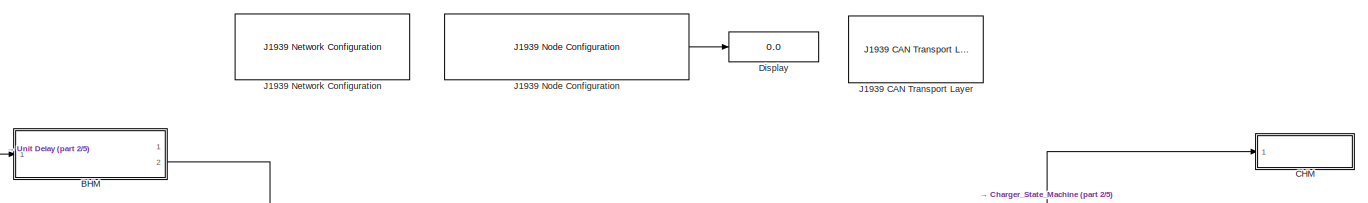
[diagram: root canvas - part 1/5, top center region]
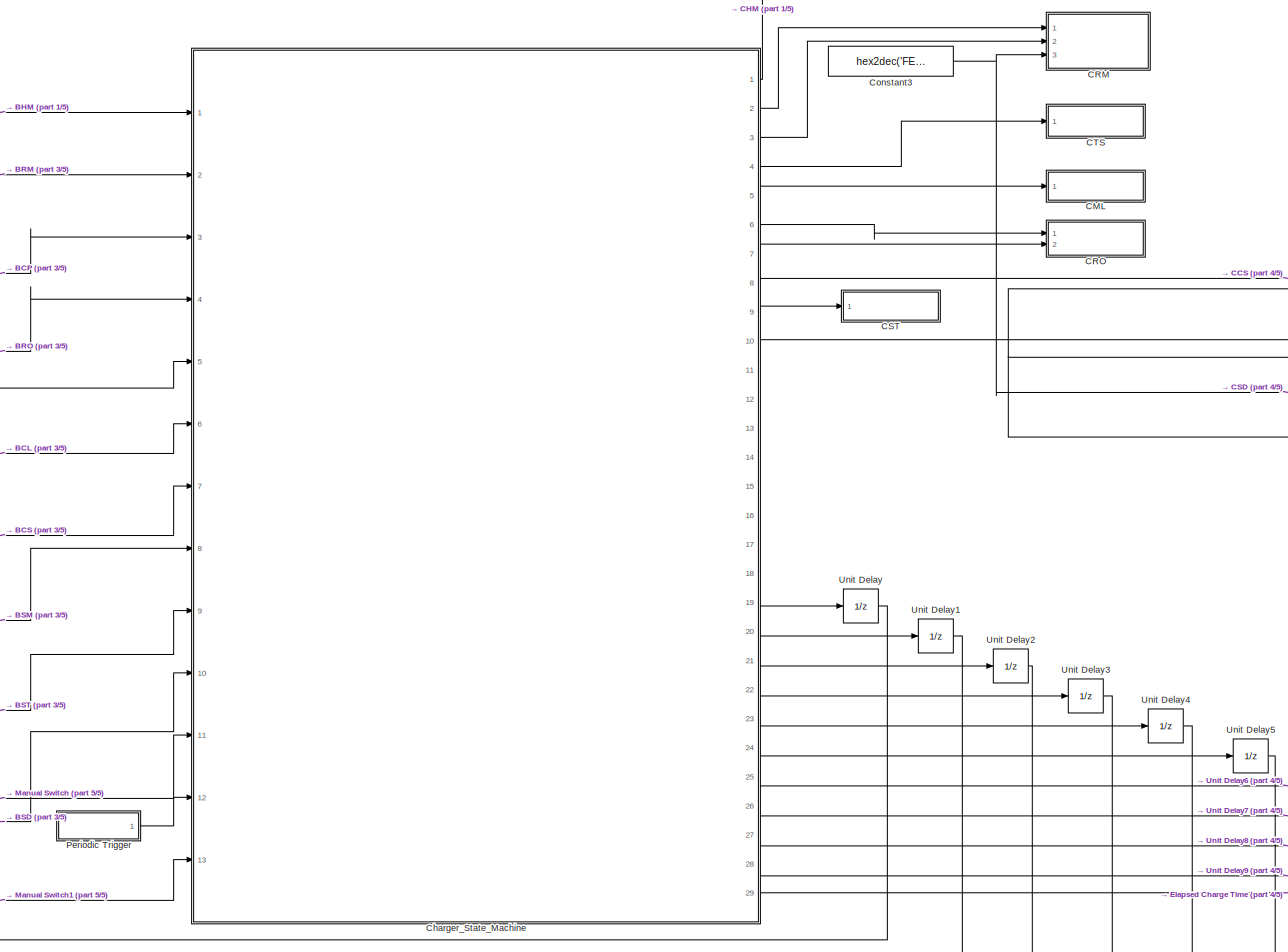
[diagram: root canvas - part 2/5, center side, full height]
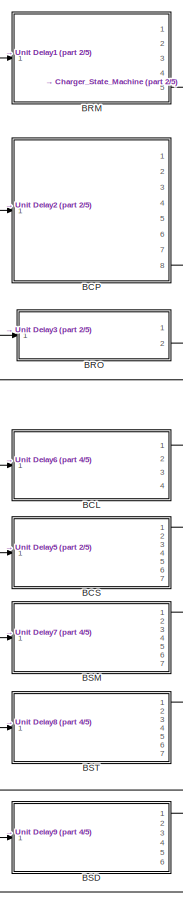
[diagram: root canvas - part 3/5, middle left region]
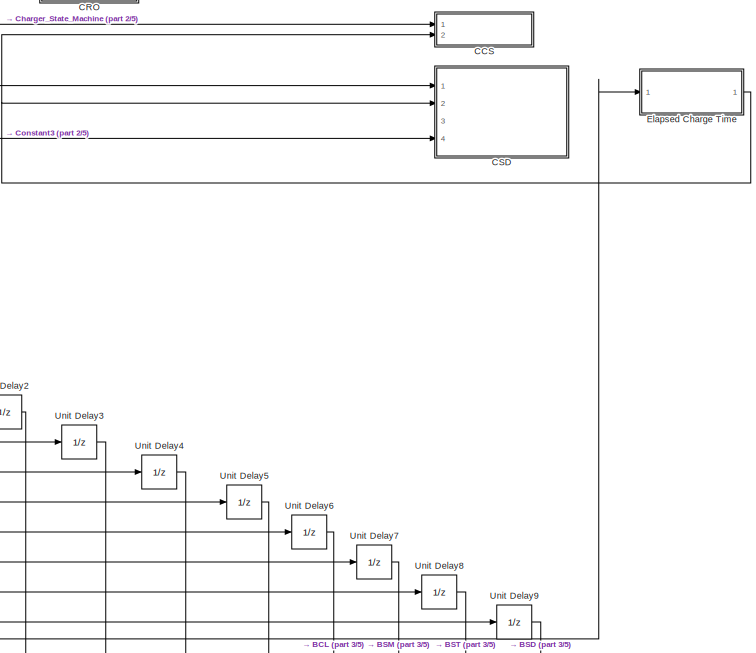
[diagram: root canvas - part 4/5, middle right region]
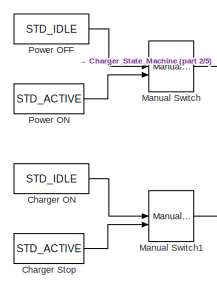
[diagram: root canvas - part 5/5, bottom left region]
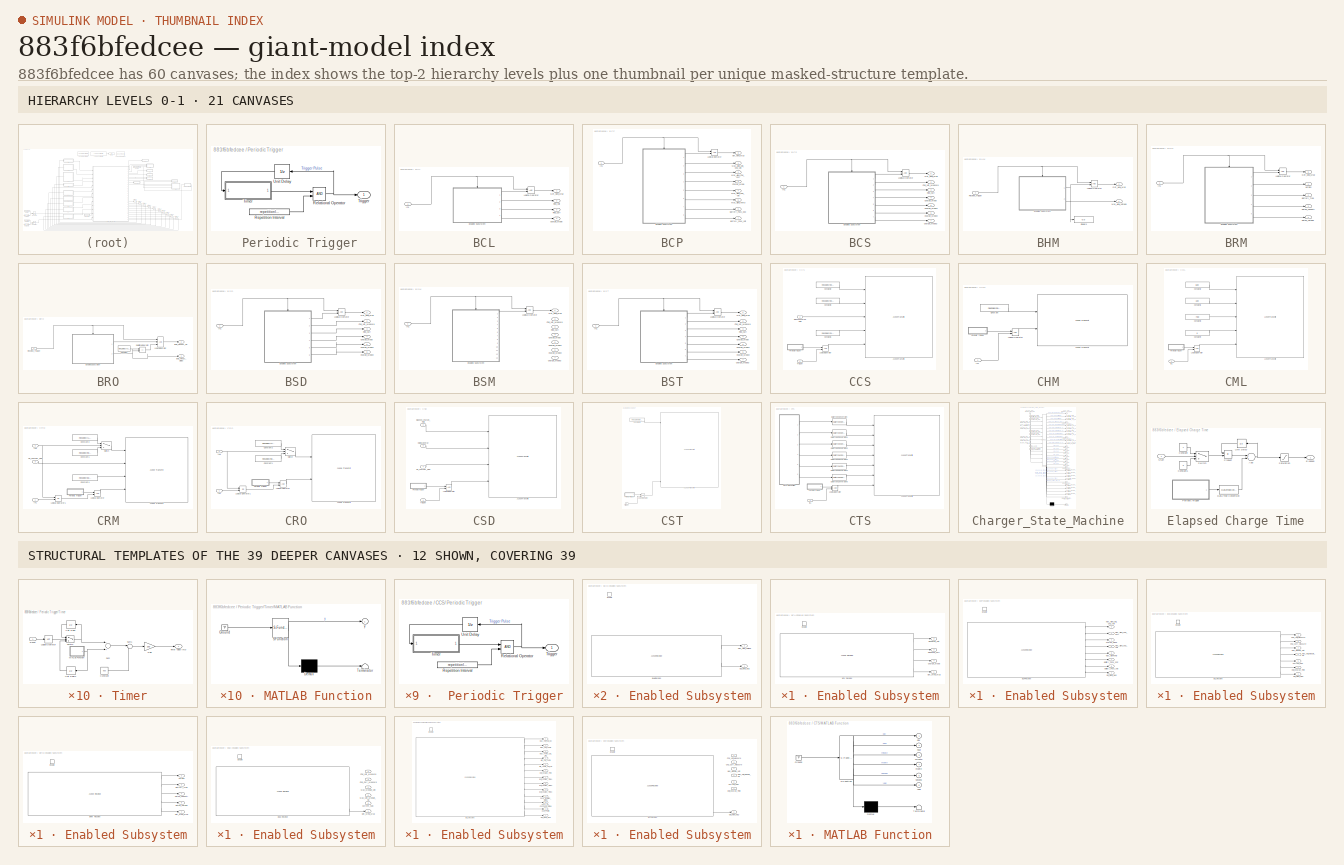
[diagram: thumbnail index - top-2 hierarchy levels (21 canvases) + 12 structural-template representatives of the remaining 39 canvases]
MODEL slx_883f6bfedcee
KIND model
CONFIG AbsTol = auto
CONFIG FixedStep = auto
CONFIG MaxStep = auto
CONFIG MinStep = auto
CONFIG PreLoadFcn = run('GBT_Fast_Charger_Simulator_Parameters');
CONFIG RelTol = 1e-3
CONFIG SampleTimeConstraint = Unconstrained
CONFIG Solver = FixedStepDiscrete
CONFIG SolverMode = Auto
CONFIG SolverName = FixedStepDiscrete
CONFIG StartTime = 0.0
CONFIG StopTime = inf
BLOCK [SubSystem]  Periodic Trigger
  Ports = [0, 1]
  RequestExecContextInheritance = off
  ShowPortLabels = FromPortBlockName
  Variant = off
BLOCK [RelationalOperator]  Periodic Trigger/Relational Operator
  InputSameDT = off
  OutDataTypeStr = boolean
  Ports = [2, 1]
BLOCK [Constant]  Periodic Trigger/Repetition Interval
  Value = repetitionInterval
BLOCK [SubSystem]  Periodic Trigger/Timer
  Ports = [1, 1]
  RequestExecContextInheritance = off
  Variant = off
BLOCK [Constant]  Periodic Trigger/Timer/Constant
  Value = eps
BLOCK [Gain]  Periodic Trigger/Timer/Gain
  Gain = 1e3
  OutDataTypeStr = Inherit: Inherit via internal rule
  ParamDataTypeStr = Inherit: Inherit via internal rule
  SaturateOnIntegerOverflow = off
BLOCK [Logic]  Periodic Trigger/Timer/Logical Operator
  AllPortsSameDT = off
  Operator = NOT
  OutDataTypeStr = boolean
  Ports = [1, 1]
BLOCK [SubSystem]  Periodic Trigger/Timer/MATLAB Function
  ErrorFcn = Stateflow.Translate.translate
  PermitHierarchicalResolution = ExplicitOnly
  Ports = [0, 1]
  RequestExecContextInheritance = off
  SFBlockType = MATLAB Function
  TreatAsAtomicUnit = on
  Variant = off
BLOCK [Demux]  Periodic Trigger/Timer/MATLAB Function/ Demux 
  Outputs = 1
  Ports = [1, 1]
BLOCK [Ground]  Periodic Trigger/Timer/MATLAB Function/ Ground 
BLOCK [S-Function]  Periodic Trigger/Timer/MATLAB Function/ SFunction 
  EnableBusSupport = on
  FunctionName = sf_sfun
  PortCounts = [1 2]
  Ports = [1, 2]
  SFunctionDeploymentMode = off
  Tag = Stateflow S-Function GBT_Fast_Charger_Simulator 5
BLOCK [Terminator]  Periodic Trigger/Timer/MATLAB Function/ Terminator 
BLOCK [Outport]  Periodic Trigger/Timer/MATLAB Function/y
  IconDisplay = Port number
BLOCK [Inport]  Periodic Trigger/Timer/Reset
  IconDisplay = Port number
BLOCK [Sum]  Periodic Trigger/Timer/Sum
  InputSameDT = off
  Inputs = -+
  OutDataTypeStr = Inherit: Inherit via internal rule
  Ports = [2, 1]
  SaturateOnIntegerOverflow = off
BLOCK [Sum]  Periodic Trigger/Timer/Sum1
  IconShape = round
  InputSameDT = off
  Inputs = |++
  OutDataTypeStr = Inherit: Inherit via internal rule
  Ports = [2, 1]
  SaturateOnIntegerOverflow = off
BLOCK [Switch]  Periodic Trigger/Timer/Switch
  Criteria = u2 > Threshold
  InputSameDT = off
  SaturateOnIntegerOverflow = off
  ZeroCross = off
BLOCK [Outport]  Periodic Trigger/Timer/Timer Value (ms)
  IconDisplay = Port number
BLOCK [UnitDelay]  Periodic Trigger/Timer/Unit Delay
  SampleTime = -1
BLOCK [UnitDelay]  Periodic Trigger/Timer/Unit Delay1
  SampleTime = -1
BLOCK [Outport]  Periodic Trigger/Trigger
  IconDisplay = Port number
  InitialOutput = 0
  OutputWhenDisabled = reset
BLOCK [UnitDelay]  Periodic Trigger/Unit Delay
  InitialCondition = 1
  SampleTime = -1
BLOCK [SubSystem] BCL
  Ports = [1, 4]
  RequestExecContextInheritance = off
  Variant = off
BLOCK [Outport] BCL/Charge_Mode
  IconDisplay = Port number
  Port = 4
BLOCK [SubSystem] BCL/Enabled Subsystem
  Ports = [0, 4, 1]
  RequestExecContextInheritance = off
  TreatAsAtomicUnit = on
  Variant = off
BLOCK [Reference] BCL/Enabled Subsystem/BCL Receive  REF=j1939protocollib/J1939 Receive
  Ports = [0, 4]
  Priority = -1
  SourceBlock = j1939protocollib/J1939 Receive
  SourceType = J1939 Receive
BLOCK [Outport] BCL/Enabled Subsystem/Charge_Mode
  IconDisplay = Port number
  Port = 4
BLOCK [EnablePort] BCL/Enabled Subsystem/Enable
  Ports = []
BLOCK [Outport] BCL/Enabled Subsystem/Get_Mew_Msg
  IconDisplay = Port number
BLOCK [Outport] BCL/Enabled Subsystem/Required_Curr
  IconDisplay = Port number
  Port = 3
BLOCK [Outport] BCL/Enabled Subsystem/Required_Volt
  IconDisplay = Port number
  Port = 2
BLOCK [Outport] BCL/Get_New_Msg
  IconDisplay = Port number
BLOCK [Inport] BCL/In1
  IconDisplay = Port number
BLOCK [Logic] BCL/Logical Operator
  AllPortsSameDT = off
  OutDataTypeStr = boolean
  Ports = [2, 1]
BLOCK [Outport] BCL/Req_Curr
  IconDisplay = Port number
  Port = 3
BLOCK [Outport] BCL/Req_Volt
  IconDisplay = Port number
  Port = 2
BLOCK [SubSystem] BCP
  Ports = [1, 8]
  RequestExecContextInheritance = off
  Variant = off
BLOCK [Outport] BCP/Battery_Pack_SOC
  IconDisplay = Port number
  Port = 6
BLOCK [Outport] BCP/Battery_Pack_Volt
  IconDisplay = Port number
  Port = 7
BLOCK [Outport] BCP/Charge_Mode
  IconDisplay = Port number
  Port = 3
BLOCK [SubSystem] BCP/Enabled Subsystem
  Ports = [0, 8, 1]
  RequestExecContextInheritance = off
  TreatAsAtomicUnit = on
  Variant = off
BLOCK [Reference] BCP/Enabled Subsystem/BCP Receive  REF=j1939protocollib/J1939 Receive
  Ports = [0, 8]
  Priority = -1
  SourceBlock = j1939protocollib/J1939 Receive
  SourceType = J1939 Receive
BLOCK [Outport] BCP/Enabled Subsystem/Battery_Pack_SOC
  IconDisplay = Port number
  Port = 7
BLOCK [Outport] BCP/Enabled Subsystem/Battery_Pack_Volt
  IconDisplay = Port number
  Port = 8
BLOCK [Outport] BCP/Enabled Subsystem/Charge_Mode
  IconDisplay = Port number
  Port = 4
BLOCK [EnablePort] BCP/Enabled Subsystem/Enable
  Ports = []
BLOCK [Outport] BCP/Enabled Subsystem/Get_Mew_Msg
  IconDisplay = Port number
BLOCK [Outport] BCP/Enabled Subsystem/Max_Allow Temp
  IconDisplay = Port number
  Port = 6
BLOCK [Outport] BCP/Enabled Subsystem/Max_Allow_Cell_Chg_Volt
  IconDisplay = Port number
  Port = 2
BLOCK [Outport] BCP/Enabled Subsystem/Max_Allow_Chg_Curr
  IconDisplay = Port number
  Port = 3
BLOCK [Outport] BCP/Enabled Subsystem/Max_Allow_Chg_Volt
  IconDisplay = Port number
  Port = 5
BLOCK [Outport] BCP/Get_New_Msg
  IconDisplay = Port number
  Port = 8
BLOCK [Inport] BCP/In1
  IconDisplay = Port number
BLOCK [Logic] BCP/Logical Operator
  AllPortsSameDT = off
  OutDataTypeStr = boolean
  Ports = [2, 1]
BLOCK [Outport] BCP/Max_Allow_Cell_Chg_Volt
  IconDisplay = Port number
BLOCK [Outport] BCP/Max_Allow_Chg_Curr
  IconDisplay = Port number
  Port = 2
BLOCK [Outport] BCP/Max_Allow_Chg_Volt
  IconDisplay = Port number
  Port = 4
BLOCK [Outport] BCP/Max_Allow_Temp
  IconDisplay = Port number
  Port = 5
BLOCK [SubSystem] BCS
  Ports = [1, 7]
  RequestExecContextInheritance = off
  Variant = off
BLOCK [Outport] BCS/Charge_Mode
  IconDisplay = Port number
  Port = 4
BLOCK [Outport] BCS/Charge_Mode1
  IconDisplay = Port number
  Port = 5
BLOCK [Outport] BCS/Charge_Mode2
  IconDisplay = Port number
  Port = 6
BLOCK [Outport] BCS/Charge_Mode3
  IconDisplay = Port number
  Port = 7
BLOCK [Outport] BCS/Chg_Volt_Measure
  IconDisplay = Port number
  Port = 2
BLOCK [SubSystem] BCS/Enabled Subsystem
  Ports = [0, 7, 1]
  RequestExecContextInheritance = off
  TreatAsAtomicUnit = on
  Variant = off
BLOCK [Reference] BCS/Enabled Subsystem/BCL Receive  REF=j1939protocollib/J1939 Receive
  Ports = [0, 7]
  Priority = -1
  SourceBlock = j1939protocollib/J1939 Receive
  SourceType = J1939 Receive
BLOCK [Outport] BCS/Enabled Subsystem/Chg_Curr_Measure
  IconDisplay = Port number
  Port = 3
BLOCK [Outport] BCS/Enabled Subsystem/Chg_Volt_Measure
  IconDisplay = Port number
  Port = 2
BLOCK [Outport] BCS/Enabled Subsystem/Current_SOC
  IconDisplay = Port number
  Port = 6
BLOCK [EnablePort] BCS/Enabled Subsystem/Enable
  Ports = []
BLOCK [Outport] BCS/Enabled Subsystem/Esti_Charge_Time
  IconDisplay = Port number
  Port = 7
BLOCK [Outport] BCS/Enabled Subsystem/Get_Mew_Msg
  IconDisplay = Port number
BLOCK [Outport] BCS/Enabled Subsystem/Max_Module_Volt
  IconDisplay = Port number
  Port = 4
BLOCK [Outport] BCS/Enabled Subsystem/Max_Volt_Module_No
  IconDisplay = Port number
  Port = 5
BLOCK [Outport] BCS/Get_New_Msg
  IconDisplay = Port number
BLOCK [Inport] BCS/In1
  IconDisplay = Port number
BLOCK [Logic] BCS/Logical Operator
  AllPortsSameDT = off
  OutDataTypeStr = boolean
  Ports = [2, 1]
BLOCK [Outport] BCS/Req_Curr
  IconDisplay = Port number
  Port = 3
BLOCK [SubSystem] BHM
  Ports = [1, 2]
  RequestExecContextInheritance = off
  Variant = off
BLOCK [Display] BHM/Display3
  Decimation = 1
  Format = long
  Ports = [1]
BLOCK [SubSystem] BHM/Enabled Subsystem
  Ports = [0, 2, 1]
  RequestExecContextInheritance = off
  TreatAsAtomicUnit = on
  Variant = off
BLOCK [Reference] BHM/Enabled Subsystem/BHM Receive  REF=j1939protocollib/J1939 Receive
  Ports = [0, 2]
  Priority = -1
  SourceBlock = j1939protocollib/J1939 Receive
  SourceType = J1939 Receive
BLOCK [EnablePort] BHM/Enabled Subsystem/Enable
  Ports = []
BLOCK [Outport] BHM/Enabled Subsystem/Get_Mew_Msg
  IconDisplay = Port number
BLOCK [Outport] BHM/Enabled Subsystem/Max_Allow_Voltage
  IconDisplay = Port number
  Port = 2
BLOCK [Outport] BHM/Get_New_Msg
  IconDisplay = Port number
  Port = 2
BLOCK [Logic] BHM/Logical Operator
  AllPortsSameDT = off
  OutDataTypeStr = boolean
  Ports = [2, 1]
BLOCK [Outport] BHM/Max_Allow_Voltage
  IconDisplay = Port number
BLOCK [Inport] BHM/Receive_Trigger
  IconDisplay = Port number
BLOCK [SubSystem] BRM
  Ports = [1, 5]
  RequestExecContextInheritance = off
  Variant = off
BLOCK [Outport] BRM/Battery_Type
  IconDisplay = Port number
  Port = 2
BLOCK [SubSystem] BRM/Enabled Subsystem
  Ports = [0, 5, 1]
  RequestExecContextInheritance = off
  TreatAsAtomicUnit = on
  Variant = off
BLOCK [Reference] BRM/Enabled Subsystem/BRM Receive  REF=j1939protocollib/J1939 Receive
  Ports = [0, 5]
  Priority = -1
  SourceBlock = j1939protocollib/J1939 Receive
  SourceType = J1939 Receive
BLOCK [Outport] BRM/Enabled Subsystem/Battery_Type
  IconDisplay = Port number
  Port = 3
BLOCK [EnablePort] BRM/Enabled Subsystem/Enable
  Ports = []
BLOCK [Outport] BRM/Enabled Subsystem/Get_Mew_Msg
  IconDisplay = Port number
BLOCK [Outport] BRM/Enabled Subsystem/Rated_Capacity
  IconDisplay = Port number
  Port = 4
BLOCK [Outport] BRM/Enabled Subsystem/Rated_Voltage
  IconDisplay = Port number
  Port = 5
BLOCK [Outport] BRM/Enabled Subsystem/Version
  IconDisplay = Port number
  Port = 2
BLOCK [Outport] BRM/Get_New_Msg
  IconDisplay = Port number
  Port = 5
BLOCK [Inport] BRM/In1
  IconDisplay = Port number
BLOCK [Logic] BRM/Logical Operator
  AllPortsSameDT = off
  OutDataTypeStr = boolean
  Ports = [2, 1]
BLOCK [Outport] BRM/Rated_Capacity
  IconDisplay = Port number
  Port = 3
BLOCK [Outport] BRM/Rated_Voltage
  IconDisplay = Port number
  Port = 4
BLOCK [Outport] BRM/Version
  IconDisplay = Port number
BLOCK [SubSystem] BRO
  Ports = [1, 2]
  RequestExecContextInheritance = off
  Variant = off
BLOCK [Outport] BRO/BMS_Readay_OK
  IconDisplay = Port number
  Port = 2
BLOCK [Outport] BRO/BMS_Ready_Status
  IconDisplay = Port number
BLOCK [Constant] BRO/Constant
  Value = hex2dec('AA')
BLOCK [SubSystem] BRO/Enabled Subsystem
  Ports = [0, 2, 1]
  RequestExecContextInheritance = off
  TreatAsAtomicUnit = on
  Variant = off
BLOCK [Reference] BRO/Enabled Subsystem/BHM Receive  REF=j1939protocollib/J1939 Receive
  Ports = [0, 2]
  Priority = -1
  SourceBlock = j1939protocollib/J1939 Receive
  SourceType = J1939 Receive
BLOCK [Outport] BRO/Enabled Subsystem/BMS_Ready_Status
  IconDisplay = Port number
  Port = 2
BLOCK [EnablePort] BRO/Enabled Subsystem/Enable
  Ports = []
BLOCK [Outport] BRO/Enabled Subsystem/Get_Mew_Msg
  IconDisplay = Port number
BLOCK [Logic] BRO/Logical Operator
  AllPortsSameDT = off
  Inputs = 3
  OutDataTypeStr = boolean
  Ports = [3, 1]
BLOCK [Inport] BRO/Receive_Trigger
  IconDisplay = Port number
BLOCK [RelationalOperator] BRO/Relational Operator
  InputSameDT = off
  Operator = ==
  OutDataTypeStr = boolean
  Ports = [2, 1]
BLOCK [SubSystem] BSD
  Ports = [1, 6]
  RequestExecContextInheritance = off
  Variant = off
BLOCK [Outport] BSD/Charge_Mode
  IconDisplay = Port number
  Port = 4
BLOCK [Outport] BSD/Charge_Mode1
  IconDisplay = Port number
  Port = 5
BLOCK [Outport] BSD/Charge_Mode2
  IconDisplay = Port number
  Port = 6
BLOCK [Outport] BSD/Chg_Volt_Measure
  IconDisplay = Port number
  Port = 2
BLOCK [SubSystem] BSD/Enabled Subsystem
  Ports = [0, 6, 1]
  RequestExecContextInheritance = off
  TreatAsAtomicUnit = on
  Variant = off
BLOCK [Reference] BSD/Enabled Subsystem/BSD Receive  REF=j1939protocollib/J1939 Receive
  Ports = [0, 6]
  Priority = -1
  SourceBlock = j1939protocollib/J1939 Receive
  SourceType = J1939 Receive
BLOCK [Outport] BSD/Enabled Subsystem/Chg_Curr_Measure
  IconDisplay = Port number
  Port = 3
BLOCK [Outport] BSD/Enabled Subsystem/Chg_Volt_Measure
  IconDisplay = Port number
  Port = 2
BLOCK [Outport] BSD/Enabled Subsystem/Current_SOC
  IconDisplay = Port number
  Port = 6
BLOCK [EnablePort] BSD/Enabled Subsystem/Enable
  Ports = []
BLOCK [Outport] BSD/Enabled Subsystem/Get_Mew_Msg
  IconDisplay = Port number
BLOCK [Outport] BSD/Enabled Subsystem/Max_Module_Volt
  IconDisplay = Port number
  Port = 4
BLOCK [Outport] BSD/Enabled Subsystem/Max_Volt_Module_No
  IconDisplay = Port number
  Port = 5
BLOCK [Outport] BSD/Get_New_Msg
  IconDisplay = Port number
BLOCK [Inport] BSD/In1
  IconDisplay = Port number
BLOCK [Logic] BSD/Logical Operator
  AllPortsSameDT = off
  OutDataTypeStr = boolean
  Ports = [2, 1]
BLOCK [Outport] BSD/Req_Curr
  IconDisplay = Port number
  Port = 3
BLOCK [SubSystem] BSM
  Ports = [1, 7]
  RequestExecContextInheritance = off
  Variant = off
BLOCK [Outport] BSM/Charge_Mode
  IconDisplay = Port number
  Port = 4
BLOCK [Outport] BSM/Charge_Mode1
  IconDisplay = Port number
  Port = 5
BLOCK [Outport] BSM/Charge_Mode2
  IconDisplay = Port number
  Port = 6
BLOCK [Outport] BSM/Charge_Mode3
  IconDisplay = Port number
  Port = 7
BLOCK [Outport] BSM/Chg_Volt_Measure
  IconDisplay = Port number
  Port = 2
BLOCK [SubSystem] BSM/Enabled Subsystem
  Ports = [0, 13, 1]
  RequestExecContextInheritance = off
  TreatAsAtomicUnit = on
  Variant = off
BLOCK [Reference] BSM/Enabled Subsystem/BCL Receive  REF=j1939protocollib/J1939 Receive
  Ports = [0, 13]
  Priority = -1
  SourceBlock = j1939protocollib/J1939 Receive
  SourceType = J1939 Receive
BLOCK [Outport] BSM/Enabled Subsystem/Chg_Permit
  IconDisplay = Port number
  Port = 13
BLOCK [EnablePort] BSM/Enabled Subsystem/Enable
  Ports = []
BLOCK [Outport] BSM/Enabled Subsystem/Esti_Charge_Time
  IconDisplay = Port number
  Port = 7
BLOCK [Outport] BSM/Enabled Subsystem/Esti_Charge_Time1
  IconDisplay = Port number
  Port = 8
BLOCK [Outport] BSM/Enabled Subsystem/Esti_Charge_Time2
  IconDisplay = Port number
  Port = 9
BLOCK [Outport] BSM/Enabled Subsystem/Esti_Charge_Time3
  IconDisplay = Port number
  Port = 10
BLOCK [Outport] BSM/Enabled Subsystem/Get_Mew_Msg
  IconDisplay = Port number
BLOCK [Outport] BSM/Enabled Subsystem/Max_Cell_Temp
  IconDisplay = Port number
  Port = 3
BLOCK [Outport] BSM/Enabled Subsystem/Max_Temp_Cell_No
  IconDisplay = Port number
  Port = 4
BLOCK [Outport] BSM/Enabled Subsystem/Max_Volt_Cell_No
  IconDisplay = Port number
  Port = 2
BLOCK [Outport] BSM/Enabled Subsystem/Min_Cell_Temp
  IconDisplay = Port number
  Port = 5
BLOCK [Outport] BSM/Enabled Subsystem/Min_Temp_Cell_No
  IconDisplay = Port number
  Port = 6
BLOCK [Outport] BSM/Enabled Subsystem/Pack_HV_Connector_Status
  IconDisplay = Port number
  Port = 12
BLOCK [Outport] BSM/Enabled Subsystem/Pack_Isolation_Status
  IconDisplay = Port number
  Port = 11
BLOCK [Outport] BSM/Get_New_Msg
  IconDisplay = Port number
BLOCK [Inport] BSM/In1
  IconDisplay = Port number
BLOCK [Logic] BSM/Logical Operator
  AllPortsSameDT = off
  OutDataTypeStr = boolean
  Ports = [2, 1]
BLOCK [Outport] BSM/Req_Curr
  IconDisplay = Port number
  Port = 3
BLOCK [SubSystem] BST
  Ports = [1, 7]
  RequestExecContextInheritance = off
  Variant = off
BLOCK [Outport] BST/Charge_Mode
  IconDisplay = Port number
  Port = 4
BLOCK [Outport] BST/Charge_Mode1
  IconDisplay = Port number
  Port = 5
BLOCK [Outport] BST/Charge_Mode2
  IconDisplay = Port number
  Port = 6
BLOCK [Outport] BST/Charge_Mode3
  IconDisplay = Port number
  Port = 7
BLOCK [Outport] BST/Chg_Volt_Measure
  IconDisplay = Port number
  Port = 2
BLOCK [SubSystem] BST/Enabled Subsystem
  Ports = [0, 7, 1]
  RequestExecContextInheritance = off
  TreatAsAtomicUnit = on
  Variant = off
BLOCK [Reference] BST/Enabled Subsystem/BST Receive  REF=j1939protocollib/J1939 Receive
  Ports = [0, 15]
  Priority = -1
  SourceBlock = j1939protocollib/J1939 Receive
  SourceType = J1939 Receive
BLOCK [Outport] BST/Enabled Subsystem/Chg_Curr_Measure
  IconDisplay = Port number
  Port = 3
BLOCK [Outport] BST/Enabled Subsystem/Chg_Volt_Measure
  IconDisplay = Port number
  Port = 2
BLOCK [Outport] BST/Enabled Subsystem/Current_SOC
  IconDisplay = Port number
  Port = 6
BLOCK [EnablePort] BST/Enabled Subsystem/Enable
  Ports = []
BLOCK [Outport] BST/Enabled Subsystem/Esti_Charge_Time
  IconDisplay = Port number
  Port = 7
BLOCK [Outport] BST/Enabled Subsystem/Get_Mew_Msg
  IconDisplay = Port number
BLOCK [Outport] BST/Enabled Subsystem/Max_Module_Volt
  IconDisplay = Port number
  Port = 4
BLOCK [Outport] BST/Enabled Subsystem/Max_Volt_Module_No
  IconDisplay = Port number
  Port = 5
BLOCK [Outport] BST/Get_New_Msg
  IconDisplay = Port number
BLOCK [Inport] BST/In1
  IconDisplay = Port number
BLOCK [Logic] BST/Logical Operator
  AllPortsSameDT = off
  OutDataTypeStr = boolean
  Ports = [2, 1]
BLOCK [Outport] BST/Req_Curr
  IconDisplay = Port number
  Port = 3
BLOCK [SubSystem] CCS
  Ports = [2]
  RequestExecContextInheritance = off
  Variant = off
BLOCK [SubSystem] CCS/ Periodic Trigger
  Ports = [0, 1]
  RequestExecContextInheritance = off
  ShowPortLabels = FromPortBlockName
  Variant = off
BLOCK [RelationalOperator] CCS/ Periodic Trigger/Relational Operator
  InputSameDT = off
  OutDataTypeStr = boolean
  Ports = [2, 1]
BLOCK [Constant] CCS/ Periodic Trigger/Repetition Interval
  Value = repetitionInterval
BLOCK [SubSystem] CCS/ Periodic Trigger/Timer
  Ports = [1, 1]
  RequestExecContextInheritance = off
  Variant = off
BLOCK [Constant] CCS/ Periodic Trigger/Timer/Constant
  Value = eps
BLOCK [Gain] CCS/ Periodic Trigger/Timer/Gain
  Gain = 1e3
  OutDataTypeStr = Inherit: Inherit via internal rule
  ParamDataTypeStr = Inherit: Inherit via internal rule
  SaturateOnIntegerOverflow = off
BLOCK [Logic] CCS/ Periodic Trigger/Timer/Logical Operator
  AllPortsSameDT = off
  Operator = NOT
  OutDataTypeStr = boolean
  Ports = [1, 1]
BLOCK [SubSystem] CCS/ Periodic Trigger/Timer/MATLAB Function
  ErrorFcn = Stateflow.Translate.translate
  PermitHierarchicalResolution = ExplicitOnly
  Ports = [0, 1]
  RequestExecContextInheritance = off
  SFBlockType = MATLAB Function
  TreatAsAtomicUnit = on
  Variant = off
BLOCK [Demux] CCS/ Periodic Trigger/Timer/MATLAB Function/ Demux 
  Outputs = 1
  Ports = [1, 1]
BLOCK [Ground] CCS/ Periodic Trigger/Timer/MATLAB Function/ Ground 
BLOCK [S-Function] CCS/ Periodic Trigger/Timer/MATLAB Function/ SFunction 
  EnableBusSupport = on
  FunctionName = sf_sfun
  PortCounts = [1 2]
  Ports = [1, 2]
  SFunctionDeploymentMode = off
  Tag = Stateflow S-Function GBT_Fast_Charger_Simulator 9
BLOCK [Terminator] CCS/ Periodic Trigger/Timer/MATLAB Function/ Terminator 
BLOCK [Outport] CCS/ Periodic Trigger/Timer/MATLAB Function/y
  IconDisplay = Port number
BLOCK [Inport] CCS/ Periodic Trigger/Timer/Reset
  IconDisplay = Port number
BLOCK [Sum] CCS/ Periodic Trigger/Timer/Sum
  InputSameDT = off
  Inputs = -+
  OutDataTypeStr = Inherit: Inherit via internal rule
  Ports = [2, 1]
  SaturateOnIntegerOverflow = off
BLOCK [Sum] CCS/ Periodic Trigger/Timer/Sum1
  IconShape = round
  InputSameDT = off
  Inputs = |++
  OutDataTypeStr = Inherit: Inherit via internal rule
  Ports = [2, 1]
  SaturateOnIntegerOverflow = off
BLOCK [Switch] CCS/ Periodic Trigger/Timer/Switch
  Criteria = u2 > Threshold
  InputSameDT = off
  SaturateOnIntegerOverflow = off
  ZeroCross = off
BLOCK [Outport] CCS/ Periodic Trigger/Timer/Timer Value (ms)
  IconDisplay = Port number
BLOCK [UnitDelay] CCS/ Periodic Trigger/Timer/Unit Delay
  SampleTime = -1
BLOCK [UnitDelay] CCS/ Periodic Trigger/Timer/Unit Delay1
  SampleTime = -1
BLOCK [Outport] CCS/ Periodic Trigger/Trigger
  IconDisplay = Port number
  InitialOutput = 0
  OutputWhenDisabled = reset
BLOCK [UnitDelay] CCS/ Periodic Trigger/Unit Delay
  InitialCondition = 1
  SampleTime = -1
BLOCK [Constant] CCS/Constant1
  Value = hex2dec('01')
BLOCK [Constant] CCS/Constant2
  Value = hex2dec('00')
BLOCK [Constant] CCS/Constant3
  Value = hex2dec('00')
BLOCK [Inport] CCS/Elapsed Charge Time
  IconDisplay = Port number
  Port = 2
BLOCK [Reference] CCS/J1939 Transmit  REF=j1939protocollib/J1939 Transmit
  Ports = [5]
  Priority = -1
  SourceBlock = j1939protocollib/J1939 Transmit
  SourceType = J1939 Transmit
BLOCK [Logic] CCS/Logical Operator
  AllPortsSameDT = off
  OutDataTypeStr = boolean
  Ports = [2, 1]
BLOCK [Inport] CCS/Trigger
  IconDisplay = Port number
BLOCK [SubSystem] CHM
  Ports = [1]
  RequestExecContextInheritance = off
  Variant = off
BLOCK [SubSystem] CHM/ Periodic Trigger
  Ports = [0, 1]
  RequestExecContextInheritance = off
  ShowPortLabels = FromPortBlockName
  Variant = off
BLOCK [RelationalOperator] CHM/ Periodic Trigger/Relational Operator
  InputSameDT = off
  OutDataTypeStr = boolean
  Ports = [2, 1]
BLOCK [Constant] CHM/ Periodic Trigger/Repetition Interval
  Value = repetitionInterval
BLOCK [SubSystem] CHM/ Periodic Trigger/Timer
  Ports = [1, 1]
  RequestExecContextInheritance = off
  Variant = off
BLOCK [Constant] CHM/ Periodic Trigger/Timer/Constant
  Value = eps
BLOCK [Gain] CHM/ Periodic Trigger/Timer/Gain
  Gain = 1e3
  OutDataTypeStr = Inherit: Inherit via internal rule
  ParamDataTypeStr = Inherit: Inherit via internal rule
  SaturateOnIntegerOverflow = off
BLOCK [Logic] CHM/ Periodic Trigger/Timer/Logical Operator
  AllPortsSameDT = off
  Operator = NOT
  OutDataTypeStr = boolean
  Ports = [1, 1]
BLOCK [SubSystem] CHM/ Periodic Trigger/Timer/MATLAB Function
  ErrorFcn = Stateflow.Translate.translate
  PermitHierarchicalResolution = ExplicitOnly
  Ports = [0, 1]
  RequestExecContextInheritance = off
  SFBlockType = MATLAB Function
  TreatAsAtomicUnit = on
  Variant = off
BLOCK [Demux] CHM/ Periodic Trigger/Timer/MATLAB Function/ Demux 
  Outputs = 1
  Ports = [1, 1]
BLOCK [Ground] CHM/ Periodic Trigger/Timer/MATLAB Function/ Ground 
BLOCK [S-Function] CHM/ Periodic Trigger/Timer/MATLAB Function/ SFunction 
  EnableBusSupport = on
  FunctionName = sf_sfun
  PortCounts = [1 2]
  Ports = [1, 2]
  SFunctionDeploymentMode = off
  Tag = Stateflow S-Function GBT_Fast_Charger_Simulator 2
BLOCK [Terminator] CHM/ Periodic Trigger/Timer/MATLAB Function/ Terminator 
BLOCK [Outport] CHM/ Periodic Trigger/Timer/MATLAB Function/y
  IconDisplay = Port number
BLOCK [Inport] CHM/ Periodic Trigger/Timer/Reset
  IconDisplay = Port number
BLOCK [Sum] CHM/ Periodic Trigger/Timer/Sum
  InputSameDT = off
  Inputs = -+
  OutDataTypeStr = Inherit: Inherit via internal rule
  Ports = [2, 1]
  SaturateOnIntegerOverflow = off
BLOCK [Sum] CHM/ Periodic Trigger/Timer/Sum1
  IconShape = round
  InputSameDT = off
  Inputs = |++
  OutDataTypeStr = Inherit: Inherit via internal rule
  Ports = [2, 1]
  SaturateOnIntegerOverflow = off
BLOCK [Switch] CHM/ Periodic Trigger/Timer/Switch
  Criteria = u2 > Threshold
  InputSameDT = off
  SaturateOnIntegerOverflow = off
  ZeroCross = off
BLOCK [Outport] CHM/ Periodic Trigger/Timer/Timer Value (ms)
  IconDisplay = Port number
BLOCK [UnitDelay] CHM/ Periodic Trigger/Timer/Unit Delay
  SampleTime = -1
BLOCK [UnitDelay] CHM/ Periodic Trigger/Timer/Unit Delay1
  SampleTime = -1
BLOCK [Outport] CHM/ Periodic Trigger/Trigger
  IconDisplay = Port number
  InitialOutput = 0
  OutputWhenDisabled = reset
BLOCK [UnitDelay] CHM/ Periodic Trigger/Unit Delay
  InitialCondition = 1
  SampleTime = -1
BLOCK [Constant] CHM/Constant
  Value = hex2dec('000101')
BLOCK [Inport] CHM/In1
  IconDisplay = Port number
BLOCK [Reference] CHM/J1939 Transmit  REF=j1939protocollib/J1939 Transmit
  Ports = [2]
  Priority = -1
  SourceBlock = j1939protocollib/J1939 Transmit
  SourceType = J1939 Transmit
BLOCK [Logic] CHM/Logical Operator
  AllPortsSameDT = off
  OutDataTypeStr = boolean
  Ports = [2, 1]
BLOCK [SubSystem] CML
  Ports = [1]
  RequestExecContextInheritance = off
  Variant = off
BLOCK [SubSystem] CML/ Periodic Trigger
  Ports = [0, 1]
  RequestExecContextInheritance = off
  ShowPortLabels = FromPortBlockName
  Variant = off
BLOCK [RelationalOperator] CML/ Periodic Trigger/Relational Operator
  InputSameDT = off
  OutDataTypeStr = boolean
  Ports = [2, 1]
BLOCK [Constant] CML/ Periodic Trigger/Repetition Interval
  Value = repetitionInterval
BLOCK [SubSystem] CML/ Periodic Trigger/Timer
  Ports = [1, 1]
  RequestExecContextInheritance = off
  Variant = off
BLOCK [Constant] CML/ Periodic Trigger/Timer/Constant
  Value = eps
BLOCK [Gain] CML/ Periodic Trigger/Timer/Gain
  Gain = 1e3
  OutDataTypeStr = Inherit: Inherit via internal rule
  ParamDataTypeStr = Inherit: Inherit via internal rule
  SaturateOnIntegerOverflow = off
BLOCK [Logic] CML/ Periodic Trigger/Timer/Logical Operator
  AllPortsSameDT = off
  Operator = NOT
  OutDataTypeStr = boolean
  Ports = [1, 1]
BLOCK [SubSystem] CML/ Periodic Trigger/Timer/MATLAB Function
  ErrorFcn = Stateflow.Translate.translate
  PermitHierarchicalResolution = ExplicitOnly
  Ports = [0, 1]
  RequestExecContextInheritance = off
  SFBlockType = MATLAB Function
  TreatAsAtomicUnit = on
  Variant = off
BLOCK [Demux] CML/ Periodic Trigger/Timer/MATLAB Function/ Demux 
  Outputs = 1
  Ports = [1, 1]
BLOCK [Ground] CML/ Periodic Trigger/Timer/MATLAB Function/ Ground 
BLOCK [S-Function] CML/ Periodic Trigger/Timer/MATLAB Function/ SFunction 
  EnableBusSupport = on
  FunctionName = sf_sfun
  PortCounts = [1 2]
  Ports = [1, 2]
  SFunctionDeploymentMode = off
  Tag = Stateflow S-Function GBT_Fast_Charger_Simulator 6
BLOCK [Terminator] CML/ Periodic Trigger/Timer/MATLAB Function/ Terminator 
BLOCK [Outport] CML/ Periodic Trigger/Timer/MATLAB Function/y
  IconDisplay = Port number
BLOCK [Inport] CML/ Periodic Trigger/Timer/Reset
  IconDisplay = Port number
BLOCK [Sum] CML/ Periodic Trigger/Timer/Sum
  InputSameDT = off
  Inputs = -+
  OutDataTypeStr = Inherit: Inherit via internal rule
  Ports = [2, 1]
  SaturateOnIntegerOverflow = off
BLOCK [Sum] CML/ Periodic Trigger/Timer/Sum1
  IconShape = round
  InputSameDT = off
  Inputs = |++
  OutDataTypeStr = Inherit: Inherit via internal rule
  Ports = [2, 1]
  SaturateOnIntegerOverflow = off
BLOCK [Switch] CML/ Periodic Trigger/Timer/Switch
  Criteria = u2 > Threshold
  InputSameDT = off
  SaturateOnIntegerOverflow = off
  ZeroCross = off
BLOCK [Outport] CML/ Periodic Trigger/Timer/Timer Value (ms)
  IconDisplay = Port number
BLOCK [UnitDelay] CML/ Periodic Trigger/Timer/Unit Delay
  SampleTime = -1
BLOCK [UnitDelay] CML/ Periodic Trigger/Timer/Unit Delay1
  SampleTime = -1
BLOCK [Outport] CML/ Periodic Trigger/Trigger
  IconDisplay = Port number
  InitialOutput = 0
  OutputWhenDisabled = reset
BLOCK [UnitDelay] CML/ Periodic Trigger/Unit Delay
  InitialCondition = 1
  SampleTime = -1
BLOCK [Constant] CML/Constant1
  Value = 100
BLOCK [Constant] CML/Constant2
  Value = 600
BLOCK [Constant] CML/Constant3
  Value = -400
BLOCK [Constant] CML/Constant4
  Value = 0
BLOCK [Inport] CML/In1
  IconDisplay = Port number
BLOCK [Reference] CML/J1939 Transmit  REF=j1939protocollib/J1939 Transmit
  Ports = [5]
  Priority = -1
  SourceBlock = j1939protocollib/J1939 Transmit
  SourceType = J1939 Transmit
BLOCK [Logic] CML/Logical Operator
  AllPortsSameDT = off
  OutDataTypeStr = boolean
  Ports = [2, 1]
BLOCK [SubSystem] CRM
  Ports = [3]
  RequestExecContextInheritance = off
  Variant = off
BLOCK [SubSystem] CRM/ Periodic Trigger
  Ports = [0, 1]
  RequestExecContextInheritance = off
  ShowPortLabels = FromPortBlockName
  Variant = off
BLOCK [RelationalOperator] CRM/ Periodic Trigger/Relational Operator
  InputSameDT = off
  OutDataTypeStr = boolean
  Ports = [2, 1]
BLOCK [Constant] CRM/ Periodic Trigger/Repetition Interval
  Value = repetitionInterval
BLOCK [SubSystem] CRM/ Periodic Trigger/Timer
  Ports = [1, 1]
  RequestExecContextInheritance = off
  Variant = off
BLOCK [Constant] CRM/ Periodic Trigger/Timer/Constant
  Value = eps
BLOCK [Gain] CRM/ Periodic Trigger/Timer/Gain
  Gain = 1e3
  OutDataTypeStr = Inherit: Inherit via internal rule
  ParamDataTypeStr = Inherit: Inherit via internal rule
  SaturateOnIntegerOverflow = off
BLOCK [Logic] CRM/ Periodic Trigger/Timer/Logical Operator
  AllPortsSameDT = off
  Operator = NOT
  OutDataTypeStr = boolean
  Ports = [1, 1]
BLOCK [SubSystem] CRM/ Periodic Trigger/Timer/MATLAB Function
  ErrorFcn = Stateflow.Translate.translate
  PermitHierarchicalResolution = ExplicitOnly
  Ports = [0, 1]
  RequestExecContextInheritance = off
  SFBlockType = MATLAB Function
  TreatAsAtomicUnit = on
  Variant = off
BLOCK [Demux] CRM/ Periodic Trigger/Timer/MATLAB Function/ Demux 
  Outputs = 1
  Ports = [1, 1]
BLOCK [Ground] CRM/ Periodic Trigger/Timer/MATLAB Function/ Ground 
BLOCK [S-Function] CRM/ Periodic Trigger/Timer/MATLAB Function/ SFunction 
  EnableBusSupport = on
  FunctionName = sf_sfun
  PortCounts = [1 2]
  Ports = [1, 2]
  SFunctionDeploymentMode = off
  Tag = Stateflow S-Function GBT_Fast_Charger_Simulator 1
BLOCK [Terminator] CRM/ Periodic Trigger/Timer/MATLAB Function/ Terminator 
BLOCK [Outport] CRM/ Periodic Trigger/Timer/MATLAB Function/y
  IconDisplay = Port number
BLOCK [Inport] CRM/ Periodic Trigger/Timer/Reset
  IconDisplay = Port number
BLOCK [Sum] CRM/ Periodic Trigger/Timer/Sum
  InputSameDT = off
  Inputs = -+
  OutDataTypeStr = Inherit: Inherit via internal rule
  Ports = [2, 1]
  SaturateOnIntegerOverflow = off
BLOCK [Sum] CRM/ Periodic Trigger/Timer/Sum1
  IconShape = round
  InputSameDT = off
  Inputs = |++
  OutDataTypeStr = Inherit: Inherit via internal rule
  Ports = [2, 1]
  SaturateOnIntegerOverflow = off
BLOCK [Switch] CRM/ Periodic Trigger/Timer/Switch
  Criteria = u2 > Threshold
  InputSameDT = off
  SaturateOnIntegerOverflow = off
  ZeroCross = off
BLOCK [Outport] CRM/ Periodic Trigger/Timer/Timer Value (ms)
  IconDisplay = Port number
BLOCK [UnitDelay] CRM/ Periodic Trigger/Timer/Unit Delay
  SampleTime = -1
BLOCK [UnitDelay] CRM/ Periodic Trigger/Timer/Unit Delay1
  SampleTime = -1
BLOCK [Outport] CRM/ Periodic Trigger/Trigger
  IconDisplay = Port number
  InitialOutput = 0
  OutputWhenDisabled = reset
BLOCK [UnitDelay] CRM/ Periodic Trigger/Unit Delay
  InitialCondition = 1
  SampleTime = -1
BLOCK [Constant] CRM/Constant1
  Value = hex2dec('00')
BLOCK [Constant] CRM/Constant2
  Value = hex2dec('AA')
BLOCK [Constant] CRM/Constant4
  Value = hex2dec('504144')
BLOCK [Inport] CRM/In1
  IconDisplay = Port number
BLOCK [Inport] CRM/In2
  IconDisplay = Port number
  Port = 2
BLOCK [Reference] CRM/J1939 Transmit  REF=j1939protocollib/J1939 Transmit
  Ports = [4]
  Priority = -1
  SourceBlock = j1939protocollib/J1939 Transmit
  SourceType = J1939 Transmit
BLOCK [Logic] CRM/Logical Operator
  AllPortsSameDT = off
  OutDataTypeStr = boolean
  Ports = [2, 1]
BLOCK [Logic] CRM/Logical Operator1
  AllPortsSameDT = off
  Operator = OR
  OutDataTypeStr = boolean
  Ports = [2, 1]
BLOCK [Inport] CRM/No_Charger_Plug
  IconDisplay = Port number
  Port = 3
BLOCK [Switch] CRM/Switch
  Criteria = u2 > Threshold
  InputSameDT = off
  SaturateOnIntegerOverflow = off
BLOCK [SubSystem] CRO
  Ports = [2]
  RequestExecContextInheritance = off
  Variant = off
BLOCK [SubSystem] CRO/ Periodic Trigger
  Ports = [0, 1]
  RequestExecContextInheritance = off
  ShowPortLabels = FromPortBlockName
  Variant = off
BLOCK [RelationalOperator] CRO/ Periodic Trigger/Relational Operator
  InputSameDT = off
  OutDataTypeStr = boolean
  Ports = [2, 1]
BLOCK [Constant] CRO/ Periodic Trigger/Repetition Interval
  Value = repetitionInterval
BLOCK [SubSystem] CRO/ Periodic Trigger/Timer
  Ports = [1, 1]
  RequestExecContextInheritance = off
  Variant = off
BLOCK [Constant] CRO/ Periodic Trigger/Timer/Constant
  Value = eps
BLOCK [Gain] CRO/ Periodic Trigger/Timer/Gain
  Gain = 1e3
  OutDataTypeStr = Inherit: Inherit via internal rule
  ParamDataTypeStr = Inherit: Inherit via internal rule
  SaturateOnIntegerOverflow = off
BLOCK [Logic] CRO/ Periodic Trigger/Timer/Logical Operator
  AllPortsSameDT = off
  Operator = NOT
  OutDataTypeStr = boolean
  Ports = [1, 1]
BLOCK [SubSystem] CRO/ Periodic Trigger/Timer/MATLAB Function
  ErrorFcn = Stateflow.Translate.translate
  PermitHierarchicalResolution = ExplicitOnly
  Ports = [0, 1]
  RequestExecContextInheritance = off
  SFBlockType = MATLAB Function
  TreatAsAtomicUnit = on
  Variant = off
BLOCK [Demux] CRO/ Periodic Trigger/Timer/MATLAB Function/ Demux 
  Outputs = 1
  Ports = [1, 1]
BLOCK [Ground] CRO/ Periodic Trigger/Timer/MATLAB Function/ Ground 
BLOCK [S-Function] CRO/ Periodic Trigger/Timer/MATLAB Function/ SFunction 
  EnableBusSupport = on
  FunctionName = sf_sfun
  PortCounts = [1 2]
  Ports = [1, 2]
  SFunctionDeploymentMode = off
  Tag = Stateflow S-Function GBT_Fast_Charger_Simulator 8
BLOCK [Terminator] CRO/ Periodic Trigger/Timer/MATLAB Function/ Terminator 
BLOCK [Outport] CRO/ Periodic Trigger/Timer/MATLAB Function/y
  IconDisplay = Port number
BLOCK [Inport] CRO/ Periodic Trigger/Timer/Reset
  IconDisplay = Port number
BLOCK [Sum] CRO/ Periodic Trigger/Timer/Sum
  InputSameDT = off
  Inputs = -+
  OutDataTypeStr = Inherit: Inherit via internal rule
  Ports = [2, 1]
  SaturateOnIntegerOverflow = off
BLOCK [Sum] CRO/ Periodic Trigger/Timer/Sum1
  IconShape = round
  InputSameDT = off
  Inputs = |++
  OutDataTypeStr = Inherit: Inherit via internal rule
  Ports = [2, 1]
  SaturateOnIntegerOverflow = off
BLOCK [Switch] CRO/ Periodic Trigger/Timer/Switch
  Criteria = u2 > Threshold
  InputSameDT = off
  SaturateOnIntegerOverflow = off
  ZeroCross = off
BLOCK [Outport] CRO/ Periodic Trigger/Timer/Timer Value (ms)
  IconDisplay = Port number
BLOCK [UnitDelay] CRO/ Periodic Trigger/Timer/Unit Delay
  SampleTime = -1
BLOCK [UnitDelay] CRO/ Periodic Trigger/Timer/Unit Delay1
  SampleTime = -1
BLOCK [Outport] CRO/ Periodic Trigger/Trigger
  IconDisplay = Port number
  InitialOutput = 0
  OutputWhenDisabled = reset
BLOCK [UnitDelay] CRO/ Periodic Trigger/Unit Delay
  InitialCondition = 1
  SampleTime = -1
BLOCK [Constant] CRO/Constant1
  Value = hex2dec('00')
BLOCK [Constant] CRO/Constant2
  Value = hex2dec('AA')
BLOCK [Inport] CRO/In1
  IconDisplay = Port number
BLOCK [Inport] CRO/In2
  IconDisplay = Port number
  Port = 2
BLOCK [Reference] CRO/J1939 Transmit  REF=j1939protocollib/J1939 Transmit
  Ports = [2]
  Priority = -1
  SourceBlock = j1939protocollib/J1939 Transmit
  SourceType = J1939 Transmit
BLOCK [Logic] CRO/Logical Operator
  AllPortsSameDT = off
  OutDataTypeStr = boolean
  Ports = [2, 1]
BLOCK [Logic] CRO/Logical Operator1
  AllPortsSameDT = off
  Operator = OR
  OutDataTypeStr = boolean
  Ports = [2, 1]
BLOCK [Switch] CRO/Switch
  Criteria = u2 > Threshold
  InputSameDT = off
  SaturateOnIntegerOverflow = off
BLOCK [SubSystem] CSD
  Ports = [4]
  RequestExecContextInheritance = off
  Variant = off
BLOCK [SubSystem] CSD/ Periodic Trigger
  Ports = [0, 1]
  RequestExecContextInheritance = off
  ShowPortLabels = FromPortBlockName
  Variant = off
BLOCK [RelationalOperator] CSD/ Periodic Trigger/Relational Operator
  InputSameDT = off
  OutDataTypeStr = boolean
  Ports = [2, 1]
BLOCK [Constant] CSD/ Periodic Trigger/Repetition Interval
  Value = repetitionInterval
BLOCK [SubSystem] CSD/ Periodic Trigger/Timer
  Ports = [1, 1]
  RequestExecContextInheritance = off
  Variant = off
BLOCK [Constant] CSD/ Periodic Trigger/Timer/Constant
  Value = eps
BLOCK [Gain] CSD/ Periodic Trigger/Timer/Gain
  Gain = 1e3
  OutDataTypeStr = Inherit: Inherit via internal rule
  ParamDataTypeStr = Inherit: Inherit via internal rule
  SaturateOnIntegerOverflow = off
BLOCK [Logic] CSD/ Periodic Trigger/Timer/Logical Operator
  AllPortsSameDT = off
  Operator = NOT
  OutDataTypeStr = boolean
  Ports = [1, 1]
BLOCK [SubSystem] CSD/ Periodic Trigger/Timer/MATLAB Function
  ErrorFcn = Stateflow.Translate.translate
  PermitHierarchicalResolution = ExplicitOnly
  Ports = [0, 1]
  RequestExecContextInheritance = off
  SFBlockType = MATLAB Function
  TreatAsAtomicUnit = on
  Variant = off
BLOCK [Demux] CSD/ Periodic Trigger/Timer/MATLAB Function/ Demux 
  Outputs = 1
  Ports = [1, 1]
BLOCK [Ground] CSD/ Periodic Trigger/Timer/MATLAB Function/ Ground 
BLOCK [S-Function] CSD/ Periodic Trigger/Timer/MATLAB Function/ SFunction 
  EnableBusSupport = on
  FunctionName = sf_sfun
  PortCounts = [1 2]
  Ports = [1, 2]
  SFunctionDeploymentMode = off
  Tag = Stateflow S-Function GBT_Fast_Charger_Simulator 12
BLOCK [Terminator] CSD/ Periodic Trigger/Timer/MATLAB Function/ Terminator 
BLOCK [Outport] CSD/ Periodic Trigger/Timer/MATLAB Function/y
  IconDisplay = Port number
BLOCK [Inport] CSD/ Periodic Trigger/Timer/Reset
  IconDisplay = Port number
BLOCK [Sum] CSD/ Periodic Trigger/Timer/Sum
  InputSameDT = off
  Inputs = -+
  OutDataTypeStr = Inherit: Inherit via internal rule
  Ports = [2, 1]
  SaturateOnIntegerOverflow = off
BLOCK [Sum] CSD/ Periodic Trigger/Timer/Sum1
  IconShape = round
  InputSameDT = off
  Inputs = |++
  OutDataTypeStr = Inherit: Inherit via internal rule
  Ports = [2, 1]
  SaturateOnIntegerOverflow = off
BLOCK [Switch] CSD/ Periodic Trigger/Timer/Switch
  Criteria = u2 > Threshold
  InputSameDT = off
  SaturateOnIntegerOverflow = off
  ZeroCross = off
BLOCK [Outport] CSD/ Periodic Trigger/Timer/Timer Value (ms)
  IconDisplay = Port number
BLOCK [UnitDelay] CSD/ Periodic Trigger/Timer/Unit Delay
  SampleTime = -1
BLOCK [UnitDelay] CSD/ Periodic Trigger/Timer/Unit Delay1
  SampleTime = -1
BLOCK [Outport] CSD/ Periodic Trigger/Trigger
  IconDisplay = Port number
  InitialOutput = 0
  OutputWhenDisabled = reset
BLOCK [UnitDelay] CSD/ Periodic Trigger/Unit Delay
  InitialCondition = 1
  SampleTime = -1
BLOCK [Inport] CSD/Elapsed_Charge_Time
  IconDisplay = Port number
  Port = 2
BLOCK [Reference] CSD/J1939 Transmit  REF=j1939protocollib/J1939 Transmit
  Ports = [4]
  Priority = -1
  SourceBlock = j1939protocollib/J1939 Transmit
  SourceType = J1939 Transmit
BLOCK [Logic] CSD/Logical Operator
  AllPortsSameDT = off
  OutDataTypeStr = boolean
  Ports = [2, 1]
BLOCK [Inport] CSD/No_Charger_Plug
  IconDisplay = Port number
  Port = 4
BLOCK [Inport] CSD/Output_Energy
  IconDisplay = Port number
  Port = 3
BLOCK [Inport] CSD/Trigger
  IconDisplay = Port number
BLOCK [SubSystem] CST
  Ports = [1]
  RequestExecContextInheritance = off
  Variant = off
BLOCK [SubSystem] CST/ Periodic Trigger
  Ports = [0, 1]
  RequestExecContextInheritance = off
  ShowPortLabels = FromPortBlockName
  Variant = off
BLOCK [RelationalOperator] CST/ Periodic Trigger/Relational Operator
  InputSameDT = off
  OutDataTypeStr = boolean
  Ports = [2, 1]
BLOCK [Constant] CST/ Periodic Trigger/Repetition Interval
  Value = repetitionInterval
BLOCK [SubSystem] CST/ Periodic Trigger/Timer
  Ports = [1, 1]
  RequestExecContextInheritance = off
  Variant = off
BLOCK [Constant] CST/ Periodic Trigger/Timer/Constant
  Value = eps
BLOCK [Gain] CST/ Periodic Trigger/Timer/Gain
  Gain = 1e3
  OutDataTypeStr = Inherit: Inherit via internal rule
  ParamDataTypeStr = Inherit: Inherit via internal rule
  SaturateOnIntegerOverflow = off
BLOCK [Logic] CST/ Periodic Trigger/Timer/Logical Operator
  AllPortsSameDT = off
  Operator = NOT
  OutDataTypeStr = boolean
  Ports = [1, 1]
BLOCK [SubSystem] CST/ Periodic Trigger/Timer/MATLAB Function
  ErrorFcn = Stateflow.Translate.translate
  PermitHierarchicalResolution = ExplicitOnly
  Ports = [0, 1]
  RequestExecContextInheritance = off
  SFBlockType = MATLAB Function
  TreatAsAtomicUnit = on
  Variant = off
BLOCK [Demux] CST/ Periodic Trigger/Timer/MATLAB Function/ Demux 
  Outputs = 1
  Ports = [1, 1]
BLOCK [Ground] CST/ Periodic Trigger/Timer/MATLAB Function/ Ground 
BLOCK [S-Function] CST/ Periodic Trigger/Timer/MATLAB Function/ SFunction 
  EnableBusSupport = on
  FunctionName = sf_sfun
  PortCounts = [1 2]
  Ports = [1, 2]
  SFunctionDeploymentMode = off
  Tag = Stateflow S-Function GBT_Fast_Charger_Simulator 11
BLOCK [Terminator] CST/ Periodic Trigger/Timer/MATLAB Function/ Terminator 
BLOCK [Outport] CST/ Periodic Trigger/Timer/MATLAB Function/y
  IconDisplay = Port number
BLOCK [Inport] CST/ Periodic Trigger/Timer/Reset
  IconDisplay = Port number
BLOCK [Sum] CST/ Periodic Trigger/Timer/Sum
  InputSameDT = off
  Inputs = -+
  OutDataTypeStr = Inherit: Inherit via internal rule
  Ports = [2, 1]
  SaturateOnIntegerOverflow = off
BLOCK [Sum] CST/ Periodic Trigger/Timer/Sum1
  IconShape = round
  InputSameDT = off
  Inputs = |++
  OutDataTypeStr = Inherit: Inherit via internal rule
  Ports = [2, 1]
  SaturateOnIntegerOverflow = off
BLOCK [Switch] CST/ Periodic Trigger/Timer/Switch
  Criteria = u2 > Threshold
  InputSameDT = off
  SaturateOnIntegerOverflow = off
  ZeroCross = off
BLOCK [Outport] CST/ Periodic Trigger/Timer/Timer Value (ms)
  IconDisplay = Port number
BLOCK [UnitDelay] CST/ Periodic Trigger/Timer/Unit Delay
  SampleTime = -1
BLOCK [UnitDelay] CST/ Periodic Trigger/Timer/Unit Delay1
  SampleTime = -1
BLOCK [Outport] CST/ Periodic Trigger/Trigger
  IconDisplay = Port number
  InitialOutput = 0
  OutputWhenDisabled = reset
BLOCK [UnitDelay] CST/ Periodic Trigger/Unit Delay
  InitialCondition = 1
  SampleTime = -1
BLOCK [Constant] CST/Constant2
  Value = hex2dec('000001')
BLOCK [Reference] CST/J1939 Transmit  REF=j1939protocollib/J1939 Transmit
  Ports = [13]
  Priority = -1
  SourceBlock = j1939protocollib/J1939 Transmit
  SourceType = J1939 Transmit
BLOCK [Logic] CST/Logical Operator
  AllPortsSameDT = off
  OutDataTypeStr = boolean
  Ports = [2, 1]
BLOCK [Inport] CST/Trigger
  IconDisplay = Port number
BLOCK [SubSystem] CTS
  Ports = [1]
  RequestExecContextInheritance = off
  Variant = off
BLOCK [SubSystem] CTS/ Periodic Trigger
  Ports = [0, 1]
  RequestExecContextInheritance = off
  ShowPortLabels = FromPortBlockName
  Variant = off
BLOCK [RelationalOperator] CTS/ Periodic Trigger/Relational Operator
  InputSameDT = off
  OutDataTypeStr = boolean
  Ports = [2, 1]
BLOCK [Constant] CTS/ Periodic Trigger/Repetition Interval
  Value = repetitionInterval
BLOCK [SubSystem] CTS/ Periodic Trigger/Timer
  Ports = [1, 1]
  RequestExecContextInheritance = off
  Variant = off
BLOCK [Constant] CTS/ Periodic Trigger/Timer/Constant
  Value = eps
BLOCK [Gain] CTS/ Periodic Trigger/Timer/Gain
  Gain = 1e3
  OutDataTypeStr = Inherit: Inherit via internal rule
  ParamDataTypeStr = Inherit: Inherit via internal rule
  SaturateOnIntegerOverflow = off
BLOCK [Logic] CTS/ Periodic Trigger/Timer/Logical Operator
  AllPortsSameDT = off
  Operator = NOT
  OutDataTypeStr = boolean
  Ports = [1, 1]
BLOCK [SubSystem] CTS/ Periodic Trigger/Timer/MATLAB Function
  ErrorFcn = Stateflow.Translate.translate
  PermitHierarchicalResolution = ExplicitOnly
  Ports = [0, 1]
  RequestExecContextInheritance = off
  SFBlockType = MATLAB Function
  TreatAsAtomicUnit = on
  Variant = off
BLOCK [Demux] CTS/ Periodic Trigger/Timer/MATLAB Function/ Demux 
  Outputs = 1
  Ports = [1, 1]
BLOCK [Ground] CTS/ Periodic Trigger/Timer/MATLAB Function/ Ground 
BLOCK [S-Function] CTS/ Periodic Trigger/Timer/MATLAB Function/ SFunction 
  EnableBusSupport = on
  FunctionName = sf_sfun
  PortCounts = [1 2]
  Ports = [1, 2]
  SFunctionDeploymentMode = off
  Tag = Stateflow S-Function GBT_Fast_Charger_Simulator 3
BLOCK [Terminator] CTS/ Periodic Trigger/Timer/MATLAB Function/ Terminator 
BLOCK [Outport] CTS/ Periodic Trigger/Timer/MATLAB Function/y
  IconDisplay = Port number
BLOCK [Inport] CTS/ Periodic Trigger/Timer/Reset
  IconDisplay = Port number
BLOCK [Sum] CTS/ Periodic Trigger/Timer/Sum
  InputSameDT = off
  Inputs = -+
  OutDataTypeStr = Inherit: Inherit via internal rule
  Ports = [2, 1]
  SaturateOnIntegerOverflow = off
BLOCK [Sum] CTS/ Periodic Trigger/Timer/Sum1
  IconShape = round
  InputSameDT = off
  Inputs = |++
  OutDataTypeStr = Inherit: Inherit via internal rule
  Ports = [2, 1]
  SaturateOnIntegerOverflow = off
BLOCK [Switch] CTS/ Periodic Trigger/Timer/Switch
  Criteria = u2 > Threshold
  InputSameDT = off
  SaturateOnIntegerOverflow = off
  ZeroCross = off
BLOCK [Outport] CTS/ Periodic Trigger/Timer/Timer Value (ms)
  IconDisplay = Port number
BLOCK [UnitDelay] CTS/ Periodic Trigger/Timer/Unit Delay
  SampleTime = -1
BLOCK [UnitDelay] CTS/ Periodic Trigger/Timer/Unit Delay1
  SampleTime = -1
BLOCK [Outport] CTS/ Periodic Trigger/Trigger
  IconDisplay = Port number
  InitialOutput = 0
  OutputWhenDisabled = reset
BLOCK [UnitDelay] CTS/ Periodic Trigger/Unit Delay
  InitialCondition = 1
  SampleTime = -1
BLOCK [DataTypeConversion] CTS/Data Type Conversion
  OutDataTypeStr = uint8
  RndMeth = Floor
  SaturateOnIntegerOverflow = off
BLOCK [DataTypeConversion] CTS/Data Type Conversion1
  OutDataTypeStr = uint8
  RndMeth = Floor
  SaturateOnIntegerOverflow = off
BLOCK [DataTypeConversion] CTS/Data Type Conversion2
  OutDataTypeStr = uint8
  RndMeth = Floor
  SaturateOnIntegerOverflow = off
BLOCK [DataTypeConversion] CTS/Data Type Conversion3
  OutDataTypeStr = uint8
  RndMeth = Floor
  SaturateOnIntegerOverflow = off
BLOCK [DataTypeConversion] CTS/Data Type Conversion4
  OutDataTypeStr = uint8
  RndMeth = Floor
  SaturateOnIntegerOverflow = off
BLOCK [DataTypeConversion] CTS/Data Type Conversion5
  OutDataTypeStr = uint16
  RndMeth = Floor
  SaturateOnIntegerOverflow = off
BLOCK [Inport] CTS/In1
  IconDisplay = Port number
BLOCK [Reference] CTS/J1939 Transmit  REF=j1939protocollib/J1939 Transmit
  Ports = [7]
  Priority = -1
  SourceBlock = j1939protocollib/J1939 Transmit
  SourceType = J1939 Transmit
BLOCK [Logic] CTS/Logical Operator
  AllPortsSameDT = off
  OutDataTypeStr = boolean
  Ports = [2, 1]
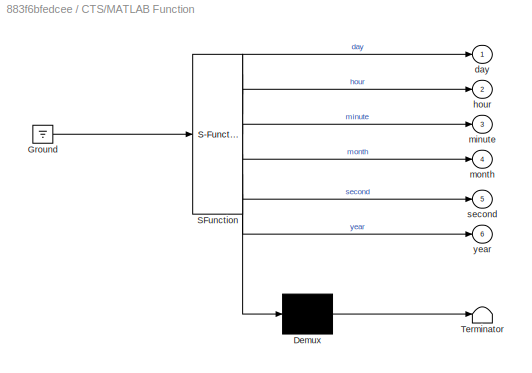
BLOCK [SubSystem] CTS/MATLAB Function
  ErrorFcn = Stateflow.Translate.translate
  PermitHierarchicalResolution = ExplicitOnly
  Ports = [0, 6]
  RequestExecContextInheritance = off
  SFBlockType = MATLAB Function
  TreatAsAtomicUnit = on
  Variant = off
BLOCK [Demux] CTS/MATLAB Function/ Demux 
  Outputs = 1
  Ports = [1, 1]
BLOCK [Ground] CTS/MATLAB Function/ Ground 
BLOCK [S-Function] CTS/MATLAB Function/ SFunction 
  EnableBusSupport = on
  FunctionName = sf_sfun
  PortCounts = [1 7]
  Ports = [1, 7]
  SFunctionDeploymentMode = off
  Tag = Stateflow S-Function GBT_Fast_Charger_Simulator 4
BLOCK [Terminator] CTS/MATLAB Function/ Terminator 
BLOCK [Outport] CTS/MATLAB Function/day
  IconDisplay = Port number
BLOCK [Outport] CTS/MATLAB Function/hour
  IconDisplay = Port number
  Port = 2
BLOCK [Outport] CTS/MATLAB Function/minute
  IconDisplay = Port number
  Port = 3
BLOCK [Outport] CTS/MATLAB Function/month
  IconDisplay = Port number
  Port = 4
BLOCK [Outport] CTS/MATLAB Function/second
  IconDisplay = Port number
  Port = 5
BLOCK [Outport] CTS/MATLAB Function/year
  IconDisplay = Port number
  Port = 6
BLOCK [Constant] Charger ON
  Value = STD_IDLE
BLOCK [Constant] Charger Stop
  Value = STD_ACTIVE
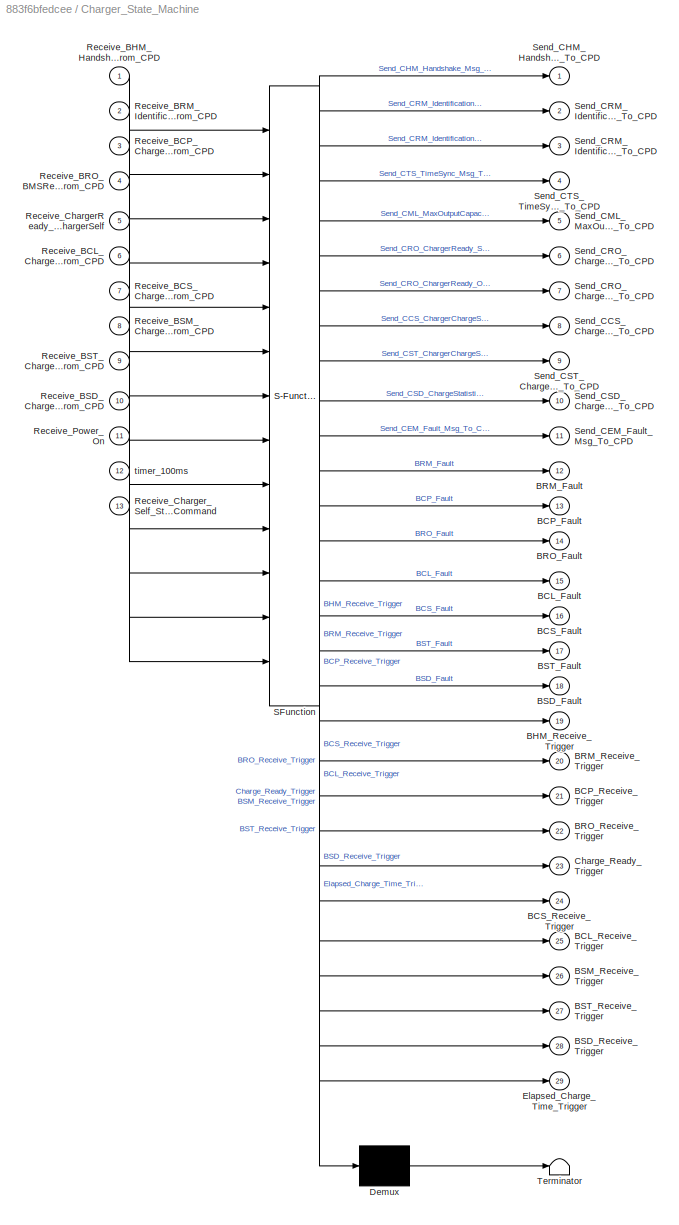
BLOCK [SubSystem] Charger_State_Machine
  ErrorFcn = Stateflow.Translate.translate
  PermitHierarchicalResolution = ExplicitOnly
  Ports = [13, 29]
  RequestExecContextInheritance = off
  SFBlockType = Chart
  TreatAsAtomicUnit = on
  Variant = off
BLOCK [Demux] Charger_State_Machine/ Demux 
  Outputs = 1
  Ports = [1, 1]
BLOCK [S-Function] Charger_State_Machine/ SFunction 
  EnableBusSupport = on
  FunctionName = sf_sfun
  Parameters = STD_ACTIVE,STD_IDLE,STD_OFF,STD_ON
  PortCounts = [13 30]
  Ports = [13, 30]
  SFunctionDeploymentMode = off
  Tag = Stateflow S-Function GBT_Fast_Charger_Simulator 7
BLOCK [Terminator] Charger_State_Machine/ Terminator 
BLOCK [Outport] Charger_State_Machine/BCL_Fault
  IconDisplay = Port number
  Port = 15
BLOCK [Outport] Charger_State_Machine/BCL_Receive_Trigger
  IconDisplay = Port number
  Port = 25
BLOCK [Outport] Charger_State_Machine/BCP_Fault
  IconDisplay = Port number
  Port = 13
BLOCK [Outport] Charger_State_Machine/BCP_Receive_Trigger
  IconDisplay = Port number
  Port = 21
BLOCK [Outport] Charger_State_Machine/BCS_Fault
  IconDisplay = Port number
  Port = 16
BLOCK [Outport] Charger_State_Machine/BCS_Receive_Trigger
  IconDisplay = Port number
  Port = 24
BLOCK [Outport] Charger_State_Machine/BHM_Receive_Trigger
  IconDisplay = Port number
  Port = 19
BLOCK [Outport] Charger_State_Machine/BRM_Fault
  IconDisplay = Port number
  Port = 12
BLOCK [Outport] Charger_State_Machine/BRM_Receive_Trigger
  IconDisplay = Port number
  Port = 20
BLOCK [Outport] Charger_State_Machine/BRO_Fault
  IconDisplay = Port number
  Port = 14
BLOCK [Outport] Charger_State_Machine/BRO_Receive_Trigger
  IconDisplay = Port number
  Port = 22
BLOCK [Outport] Charger_State_Machine/BSD_Fault
  IconDisplay = Port number
  Port = 18
BLOCK [Outport] Charger_State_Machine/BSD_Receive_Trigger
  IconDisplay = Port number
  Port = 28
BLOCK [Outport] Charger_State_Machine/BSM_Receive_Trigger
  IconDisplay = Port number
  Port = 26
BLOCK [Outport] Charger_State_Machine/BST_Fault
  IconDisplay = Port number
  Port = 17
BLOCK [Outport] Charger_State_Machine/BST_Receive_Trigger
  IconDisplay = Port number
  Port = 27
BLOCK [Outport] Charger_State_Machine/Charge_Ready_Trigger
  IconDisplay = Port number
  Port = 23
BLOCK [Outport] Charger_State_Machine/Elapsed_Charge_Time_Trigger
  IconDisplay = Port number
  Port = 29
BLOCK [Inport] Charger_State_Machine/Receive_BCL_ChargeReq_Msg_From_CPD
  IconDisplay = Port number
  Port = 6
BLOCK [Inport] Charger_State_Machine/Receive_BCP_ChargeParameter_Msg_From_CPD
  IconDisplay = Port number
  Port = 3
BLOCK [Inport] Charger_State_Machine/Receive_BCS_ChargeStatus_Msg_From_CPD
  IconDisplay = Port number
  Port = 7
BLOCK [Inport] Charger_State_Machine/Receive_BHM_Handshake_Msg_From_CPD
  IconDisplay = Port number
BLOCK [Inport] Charger_State_Machine/Receive_BRM_Identification_Msg_From_CPD
  IconDisplay = Port number
  Port = 2
BLOCK [Inport] Charger_State_Machine/Receive_BRO_BMSReady_OK_Msg_0xAA_From_CPD
  IconDisplay = Port number
  Port = 4
BLOCK [Inport] Charger_State_Machine/Receive_BSD_ChargeStatistic_Msg_From_CPD
  IconDisplay = Port number
  Port = 10
BLOCK [Inport] Charger_State_Machine/Receive_BSM_ChargeStatus_Msg_From_CPD
  IconDisplay = Port number
  Port = 8
BLOCK [Inport] Charger_State_Machine/Receive_BST_ChargeStop_Msg_From_CPD
  IconDisplay = Port number
  Port = 9
BLOCK [Inport] Charger_State_Machine/Receive_ChargerReady_OK_Msg_From_ChargerSelf
  IconDisplay = Port number
  Port = 5
BLOCK [Inport] Charger_State_Machine/Receive_Charger_Self_Stop_Command
  IconDisplay = Port number
  Port = 13
BLOCK [Inport] Charger_State_Machine/Receive_Power_On
  IconDisplay = Port number
  Port = 11
BLOCK [Outport] Charger_State_Machine/Send_CCS_ChargerChargeStatus_Msg_To_CPD
  IconDisplay = Port number
  Port = 8
BLOCK [Outport] Charger_State_Machine/Send_CEM_Fault_Msg_To_CPD
  IconDisplay = Port number
  Port = 11
BLOCK [Outport] Charger_State_Machine/Send_CHM_Handshake_Msg_To_CPD
  IconDisplay = Port number
BLOCK [Outport] Charger_State_Machine/Send_CML_MaxOutputCapacity_Msg_To_CPD
  IconDisplay = Port number
  Port = 5
BLOCK [Outport] Charger_State_Machine/Send_CRM_Identification_OK_Msg_0xAA_To_CPD
  IconDisplay = Port number
  Port = 3
BLOCK [Outport] Charger_State_Machine/Send_CRM_Identification_Start_Msg_0x00_To_CPD
  IconDisplay = Port number
  Port = 2
BLOCK [Outport] Charger_State_Machine/Send_CRO_ChargerReady_OK_Msg_0xAA_To_CPD
  IconDisplay = Port number
  Port = 7
BLOCK [Outport] Charger_State_Machine/Send_CRO_ChargerReady_Start_Msg_0x00_To_CPD
  IconDisplay = Port number
  Port = 6
BLOCK [Outport] Charger_State_Machine/Send_CSD_ChargeStatistic_Msg_To_CPD
  IconDisplay = Port number
  Port = 10
BLOCK [Outport] Charger_State_Machine/Send_CST_ChargerChargeStop_Msg_To_CPD
  IconDisplay = Port number
  Port = 9
BLOCK [Outport] Charger_State_Machine/Send_CTS_TimeSync_Msg_To_CPD
  IconDisplay = Port number
  Port = 4
BLOCK [Inport] Charger_State_Machine/timer_100ms
  IconDisplay = Port number
  Port = 12
BLOCK [Constant] Constant3
  Value = hex2dec('FEDCBA98')
BLOCK [Display] Display
  Decimation = 1
  Ports = [1]
BLOCK [SubSystem] Elapsed Charge Time
  Ports = [1, 1]
  RequestExecContextInheritance = off
  Variant = off
BLOCK [SubSystem] Elapsed Charge Time/ Periodic Trigger
  Ports = [0, 1]
  RequestExecContextInheritance = off
  ShowPortLabels = FromPortBlockName
  Variant = off
BLOCK [RelationalOperator] Elapsed Charge Time/ Periodic Trigger/Relational Operator
  InputSameDT = off
  OutDataTypeStr = boolean
  Ports = [2, 1]
BLOCK [Constant] Elapsed Charge Time/ Periodic Trigger/Repetition Interval
  Value = repetitionInterval
BLOCK [SubSystem] Elapsed Charge Time/ Periodic Trigger/Timer
  Ports = [1, 1]
  RequestExecContextInheritance = off
  Variant = off
BLOCK [Constant] Elapsed Charge Time/ Periodic Trigger/Timer/Constant
  Value = eps
BLOCK [Gain] Elapsed Charge Time/ Periodic Trigger/Timer/Gain
  Gain = 1e3
  OutDataTypeStr = Inherit: Inherit via internal rule
  ParamDataTypeStr = Inherit: Inherit via internal rule
  SaturateOnIntegerOverflow = off
BLOCK [Logic] Elapsed Charge Time/ Periodic Trigger/Timer/Logical Operator
  AllPortsSameDT = off
  Operator = NOT
  OutDataTypeStr = boolean
  Ports = [1, 1]
BLOCK [SubSystem] Elapsed Charge Time/ Periodic Trigger/Timer/MATLAB Function
  ErrorFcn = Stateflow.Translate.translate
  PermitHierarchicalResolution = ExplicitOnly
  Ports = [0, 1]
  RequestExecContextInheritance = off
  SFBlockType = MATLAB Function
  TreatAsAtomicUnit = on
  Variant = off
BLOCK [Demux] Elapsed Charge Time/ Periodic Trigger/Timer/MATLAB Function/ Demux 
  Outputs = 1
  Ports = [1, 1]
BLOCK [Ground] Elapsed Charge Time/ Periodic Trigger/Timer/MATLAB Function/ Ground 
BLOCK [S-Function] Elapsed Charge Time/ Periodic Trigger/Timer/MATLAB Function/ SFunction 
  EnableBusSupport = on
  FunctionName = sf_sfun
  PortCounts = [1 2]
  Ports = [1, 2]
  SFunctionDeploymentMode = off
  Tag = Stateflow S-Function GBT_Fast_Charger_Simulator 10
BLOCK [Terminator] Elapsed Charge Time/ Periodic Trigger/Timer/MATLAB Function/ Terminator 
BLOCK [Outport] Elapsed Charge Time/ Periodic Trigger/Timer/MATLAB Function/y
  IconDisplay = Port number
BLOCK [Inport] Elapsed Charge Time/ Periodic Trigger/Timer/Reset
  IconDisplay = Port number
BLOCK [Sum] Elapsed Charge Time/ Periodic Trigger/Timer/Sum
  InputSameDT = off
  Inputs = -+
  OutDataTypeStr = Inherit: Inherit via internal rule
  Ports = [2, 1]
  SaturateOnIntegerOverflow = off
BLOCK [Sum] Elapsed Charge Time/ Periodic Trigger/Timer/Sum1
  IconShape = round
  InputSameDT = off
  Inputs = |++
  OutDataTypeStr = Inherit: Inherit via internal rule
  Ports = [2, 1]
  SaturateOnIntegerOverflow = off
BLOCK [Switch] Elapsed Charge Time/ Periodic Trigger/Timer/Switch
  Criteria = u2 > Threshold
  InputSameDT = off
  SaturateOnIntegerOverflow = off
  ZeroCross = off
BLOCK [Outport] Elapsed Charge Time/ Periodic Trigger/Timer/Timer Value (ms)
  IconDisplay = Port number
BLOCK [UnitDelay] Elapsed Charge Time/ Periodic Trigger/Timer/Unit Delay
  SampleTime = -1
BLOCK [UnitDelay] Elapsed Charge Time/ Periodic Trigger/Timer/Unit Delay1
  SampleTime = -1
BLOCK [Outport] Elapsed Charge Time/ Periodic Trigger/Trigger
  IconDisplay = Port number
  InitialOutput = 0
  OutputWhenDisabled = reset
BLOCK [UnitDelay] Elapsed Charge Time/ Periodic Trigger/Unit Delay
  InitialCondition = 1
  SampleTime = -1
BLOCK [Sum] Elapsed Charge Time/Add
  InputSameDT = off
  OutDataTypeStr = Inherit: Inherit via internal rule
  Ports = [2, 1]
  SaturateOnIntegerOverflow = off
BLOCK [Constant] Elapsed Charge Time/Constant
BLOCK [Constant] Elapsed Charge Time/Constant1
  Value = 0
BLOCK [DataTypeConversion] Elapsed Charge Time/Data Type Conversion
  OutDataTypeStr = uint16
  RndMeth = Floor
  SaturateOnIntegerOverflow = off
BLOCK [Outport] Elapsed Charge Time/Elapsed
  IconDisplay = Port number
BLOCK [Product] Elapsed Charge Time/Product
  InputSameDT = off
  OutDataTypeStr = Inherit: Inherit via internal rule
  Ports = [2, 1]
  RndMeth = Floor
  SaturateOnIntegerOverflow = off
BLOCK [Saturate] Elapsed Charge Time/Saturation
  InputPortMap = u0
  LowerLimit = 0
  Ports = [1, 1]
  UpperLimit = 600
BLOCK [Inport] Elapsed Charge Time/Start
  IconDisplay = Port number
BLOCK [Switch] Elapsed Charge Time/Switch
  Criteria = u2 > Threshold
  InputSameDT = off
  SaturateOnIntegerOverflow = off
BLOCK [UnitDelay] Elapsed Charge Time/Unit Delay
  SampleTime = -1
BLOCK [Reference] J1939 CAN Transport Layer  REF=vntj1939tllib/J1939 CAN
Transport Layer
  Ports = []
  Priority = -2
  SourceBlock = vntj1939tllib/J1939 CAN\nTransport Layer
  SourceType = J1939 CAN Transport Layer
BLOCK [Reference] J1939 Network Configuration  REF=j1939protocollib/J1939 Network
Configuration
  Ports = []
  Priority = -3
  SourceBlock = j1939protocollib/J1939 Network\nConfiguration
  SourceType = J1939 Network Configuration
BLOCK [Reference] J1939 Node Configuration  REF=j1939protocollib/J1939 Node
Configuration
  Ports = [0, 1]
  Priority = -2
  SourceBlock = j1939protocollib/J1939 Node\nConfiguration
  SourceType = J1939 Node Configuration
BLOCK [ManualSwitch] Manual Switch
  CurrentSetting = 0
BLOCK [ManualSwitch] Manual Switch1
BLOCK [Constant] Power OFF
  Value = STD_IDLE
BLOCK [Constant] Power ON
  Value = STD_ACTIVE
BLOCK [UnitDelay] Unit Delay
  SampleTime = -1
BLOCK [UnitDelay] Unit Delay1
  SampleTime = -1
BLOCK [UnitDelay] Unit Delay2
  SampleTime = -1
BLOCK [UnitDelay] Unit Delay3
  SampleTime = -1
BLOCK [UnitDelay] Unit Delay4
  SampleTime = -1
BLOCK [UnitDelay] Unit Delay5
  SampleTime = -1
BLOCK [UnitDelay] Unit Delay6
  SampleTime = -1
BLOCK [UnitDelay] Unit Delay7
  SampleTime = -1
BLOCK [UnitDelay] Unit Delay8
  SampleTime = -1
BLOCK [UnitDelay] Unit Delay9
  SampleTime = -1
LINE  Periodic Trigger:1 -> Charger_State_Machine:12
LINE BCL/Enabled Subsystem/BCL Receive:1 -> BCL/Enabled Subsystem/Required_Volt:1
LINE BCL/Enabled Subsystem/BCL Receive:2 -> BCL/Enabled Subsystem/Required_Curr:1
LINE BCL/Enabled Subsystem/BCL Receive:3 -> BCL/Enabled Subsystem/Charge_Mode:1
LINE BCL/Enabled Subsystem/BCL Receive:4 -> BCL/Enabled Subsystem/Get_Mew_Msg:1
LINE BCL/Enabled Subsystem:1 -> BCL/Logical Operator:2
LINE BCL/Enabled Subsystem:2 -> BCL/Req_Volt:1
LINE BCL/Enabled Subsystem:3 -> BCL/Req_Curr:1
LINE BCL/Enabled Subsystem:4 -> BCL/Charge_Mode:1
NET BCL/In1:1 -> BCL/Enabled Subsystem:enable, BCL/Logical Operator:1
LINE BCL/Logical Operator:1 -> BCL/Get_New_Msg:1
LINE BCL:1 -> Charger_State_Machine:6
LINE BCP/Enabled Subsystem/BCP Receive:1 -> BCP/Enabled Subsystem/Max_Allow_Cell_Chg_Volt:1
LINE BCP/Enabled Subsystem/BCP Receive:2 -> BCP/Enabled Subsystem/Max_Allow_Chg_Curr:1
LINE BCP/Enabled Subsystem/BCP Receive:3 -> BCP/Enabled Subsystem/Charge_Mode:1
LINE BCP/Enabled Subsystem/BCP Receive:4 -> BCP/Enabled Subsystem/Max_Allow_Chg_Volt:1
LINE BCP/Enabled Subsystem/BCP Receive:5 -> BCP/Enabled Subsystem/Max_Allow Temp:1
LINE BCP/Enabled Subsystem/BCP Receive:6 -> BCP/Enabled Subsystem/Battery_Pack_SOC:1
LINE BCP/Enabled Subsystem/BCP Receive:7 -> BCP/Enabled Subsystem/Battery_Pack_Volt:1
LINE BCP/Enabled Subsystem/BCP Receive:8 -> BCP/Enabled Subsystem/Get_Mew_Msg:1
LINE BCP/Enabled Subsystem:1 -> BCP/Logical Operator:2
LINE BCP/Enabled Subsystem:2 -> BCP/Max_Allow_Cell_Chg_Volt:1
LINE BCP/Enabled Subsystem:3 -> BCP/Max_Allow_Chg_Curr:1
LINE BCP/Enabled Subsystem:4 -> BCP/Charge_Mode:1
LINE BCP/Enabled Subsystem:5 -> BCP/Max_Allow_Chg_Volt:1
LINE BCP/Enabled Subsystem:6 -> BCP/Max_Allow_Temp:1
LINE BCP/Enabled Subsystem:7 -> BCP/Battery_Pack_SOC:1
LINE BCP/Enabled Subsystem:8 -> BCP/Battery_Pack_Volt:1
NET BCP/In1:1 -> BCP/Enabled Subsystem:enable, BCP/Logical Operator:1
LINE BCP/Logical Operator:1 -> BCP/Get_New_Msg:1
LINE BCP:8 -> Charger_State_Machine:3
LINE BCS/Enabled Subsystem/BCL Receive:1 -> BCS/Enabled Subsystem/Chg_Volt_Measure:1
LINE BCS/Enabled Subsystem/BCL Receive:2 -> BCS/Enabled Subsystem/Chg_Curr_Measure:1
LINE BCS/Enabled Subsystem/BCL Receive:3 -> BCS/Enabled Subsystem/Max_Module_Volt:1
LINE BCS/Enabled Subsystem/BCL Receive:4 -> BCS/Enabled Subsystem/Max_Volt_Module_No:1
LINE BCS/Enabled Subsystem/BCL Receive:5 -> BCS/Enabled Subsystem/Current_SOC:1
LINE BCS/Enabled Subsystem/BCL Receive:6 -> BCS/Enabled Subsystem/Esti_Charge_Time:1
LINE BCS/Enabled Subsystem/BCL Receive:7 -> BCS/Enabled Subsystem/Get_Mew_Msg:1
LINE BCS/Enabled Subsystem:1 -> BCS/Logical Operator:2
LINE BCS/Enabled Subsystem:2 -> BCS/Chg_Volt_Measure:1
LINE BCS/Enabled Subsystem:3 -> BCS/Req_Curr:1
LINE BCS/Enabled Subsystem:4 -> BCS/Charge_Mode:1
LINE BCS/Enabled Subsystem:5 -> BCS/Charge_Mode1:1
LINE BCS/Enabled Subsystem:6 -> BCS/Charge_Mode2:1
LINE BCS/Enabled Subsystem:7 -> BCS/Charge_Mode3:1
NET BCS/In1:1 -> BCS/Enabled Subsystem:enable, BCS/Logical Operator:1
LINE BCS/Logical Operator:1 -> BCS/Get_New_Msg:1
LINE BCS:1 -> Charger_State_Machine:7
LINE BHM/Enabled Subsystem/BHM Receive:1 -> BHM/Enabled Subsystem/Max_Allow_Voltage:1
LINE BHM/Enabled Subsystem/BHM Receive:2 -> BHM/Enabled Subsystem/Get_Mew_Msg:1
NET BHM/Enabled Subsystem:1 -> BHM/Display3:1, BHM/Logical Operator:2
LINE BHM/Enabled Subsystem:2 -> BHM/Max_Allow_Voltage:1
LINE BHM/Logical Operator:1 -> BHM/Get_New_Msg:1
NET BHM/Receive_Trigger:1 -> BHM/Enabled Subsystem:enable, BHM/Logical Operator:1
LINE BHM:2 -> Charger_State_Machine:1
LINE BRM/Enabled Subsystem/BRM Receive:1 -> BRM/Enabled Subsystem/Version:1
LINE BRM/Enabled Subsystem/BRM Receive:2 -> BRM/Enabled Subsystem/Battery_Type:1
LINE BRM/Enabled Subsystem/BRM Receive:3 -> BRM/Enabled Subsystem/Rated_Capacity:1
LINE BRM/Enabled Subsystem/BRM Receive:4 -> BRM/Enabled Subsystem/Rated_Voltage:1
LINE BRM/Enabled Subsystem/BRM Receive:5 -> BRM/Enabled Subsystem/Get_Mew_Msg:1
LINE BRM/Enabled Subsystem:1 -> BRM/Logical Operator:2
LINE BRM/Enabled Subsystem:2 -> BRM/Version:1
LINE BRM/Enabled Subsystem:3 -> BRM/Battery_Type:1
LINE BRM/Enabled Subsystem:4 -> BRM/Rated_Capacity:1
LINE BRM/Enabled Subsystem:5 -> BRM/Rated_Voltage:1
NET BRM/In1:1 -> BRM/Enabled Subsystem:enable, BRM/Logical Operator:1
LINE BRM/Logical Operator:1 -> BRM/Get_New_Msg:1
LINE BRM:5 -> Charger_State_Machine:2
LINE BRO/Constant:1 -> BRO/Relational Operator:1
LINE BRO/Enabled Subsystem/BHM Receive:1 -> BRO/Enabled Subsystem/BMS_Ready_Status:1
LINE BRO/Enabled Subsystem/BHM Receive:2 -> BRO/Enabled Subsystem/Get_Mew_Msg:1
LINE BRO/Enabled Subsystem:1 -> BRO/Logical Operator:2
NET BRO/Enabled Subsystem:2 -> BRO/BMS_Ready_Status:1, BRO/Relational Operator:2
LINE BRO/Logical Operator:1 -> BRO/BMS_Readay_OK:1
NET BRO/Receive_Trigger:1 -> BRO/Enabled Subsystem:enable, BRO/Logical Operator:1
LINE BRO/Relational Operator:1 -> BRO/Logical Operator:3
LINE BRO:2 -> Charger_State_Machine:4
LINE BSD/Enabled Subsystem/BSD Receive:6 -> BSD/Enabled Subsystem/Get_Mew_Msg:1
LINE BSD/Enabled Subsystem:1 -> BSD/Logical Operator:2
LINE BSD/Enabled Subsystem:2 -> BSD/Chg_Volt_Measure:1
LINE BSD/Enabled Subsystem:3 -> BSD/Req_Curr:1
LINE BSD/Enabled Subsystem:4 -> BSD/Charge_Mode:1
LINE BSD/Enabled Subsystem:5 -> BSD/Charge_Mode1:1
LINE BSD/Enabled Subsystem:6 -> BSD/Charge_Mode2:1
NET BSD/In1:1 -> BSD/Enabled Subsystem:enable, BSD/Logical Operator:1
LINE BSD/Logical Operator:1 -> BSD/Get_New_Msg:1
LINE BSD:1 -> Charger_State_Machine:10
LINE BSM/Enabled Subsystem/BCL Receive:1 -> BSM/Enabled Subsystem/Max_Volt_Cell_No:1
LINE BSM/Enabled Subsystem/BCL Receive:10 -> BSM/Enabled Subsystem/Pack_Isolation_Status:1
LINE BSM/Enabled Subsystem/BCL Receive:11 -> BSM/Enabled Subsystem/Pack_HV_Connector_Status:1
LINE BSM/Enabled Subsystem/BCL Receive:12 -> BSM/Enabled Subsystem/Chg_Permit:1
LINE BSM/Enabled Subsystem/BCL Receive:13 -> BSM/Enabled Subsystem/Get_Mew_Msg:1
LINE BSM/Enabled Subsystem/BCL Receive:2 -> BSM/Enabled Subsystem/Max_Cell_Temp:1
LINE BSM/Enabled Subsystem/BCL Receive:3 -> BSM/Enabled Subsystem/Max_Temp_Cell_No:1
LINE BSM/Enabled Subsystem/BCL Receive:4 -> BSM/Enabled Subsystem/Min_Cell_Temp:1
LINE BSM/Enabled Subsystem/BCL Receive:5 -> BSM/Enabled Subsystem/Min_Temp_Cell_No:1
LINE BSM/Enabled Subsystem/BCL Receive:6 -> BSM/Enabled Subsystem/Esti_Charge_Time:1
LINE BSM/Enabled Subsystem/BCL Receive:7 -> BSM/Enabled Subsystem/Esti_Charge_Time1:1
LINE BSM/Enabled Subsystem/BCL Receive:8 -> BSM/Enabled Subsystem/Esti_Charge_Time2:1
LINE BSM/Enabled Subsystem/BCL Receive:9 -> BSM/Enabled Subsystem/Esti_Charge_Time3:1
LINE BSM/Enabled Subsystem:1 -> BSM/Logical Operator:2
NET BSM/In1:1 -> BSM/Enabled Subsystem:enable, BSM/Logical Operator:1
LINE BSM/Logical Operator:1 -> BSM/Get_New_Msg:1
LINE BSM:1 -> Charger_State_Machine:8
LINE BST/Enabled Subsystem/BST Receive:15 -> BST/Enabled Subsystem/Get_Mew_Msg:1
LINE BST/Enabled Subsystem:1 -> BST/Logical Operator:2
LINE BST/Enabled Subsystem:2 -> BST/Chg_Volt_Measure:1
LINE BST/Enabled Subsystem:3 -> BST/Req_Curr:1
LINE BST/Enabled Subsystem:4 -> BST/Charge_Mode:1
LINE BST/Enabled Subsystem:5 -> BST/Charge_Mode1:1
LINE BST/Enabled Subsystem:6 -> BST/Charge_Mode2:1
LINE BST/Enabled Subsystem:7 -> BST/Charge_Mode3:1
NET BST/In1:1 -> BST/Enabled Subsystem:enable, BST/Logical Operator:1
LINE BST/Logical Operator:1 -> BST/Get_New_Msg:1
LINE BST:1 -> Charger_State_Machine:9
LINE CCS/ Periodic Trigger:1 -> CCS/Logical Operator:1
LINE CCS/Constant1:1 -> CCS/J1939 Transmit:4
LINE CCS/Constant2:1 -> CCS/J1939 Transmit:1
LINE CCS/Constant3:1 -> CCS/J1939 Transmit:2
LINE CCS/Elapsed Charge Time:1 -> CCS/J1939 Transmit:3
LINE CCS/Logical Operator:1 -> CCS/J1939 Transmit:5
LINE CCS/Trigger:1 -> CCS/Logical Operator:2
LINE CHM/ Periodic Trigger:1 -> CHM/Logical Operator:1
LINE CHM/Constant:1 -> CHM/J1939 Transmit:1
LINE CHM/In1:1 -> CHM/Logical Operator:2
LINE CHM/Logical Operator:1 -> CHM/J1939 Transmit:2
LINE CML/ Periodic Trigger:1 -> CML/Logical Operator:1
LINE CML/Constant1:1 -> CML/J1939 Transmit:2
LINE CML/Constant2:1 -> CML/J1939 Transmit:1
LINE CML/Constant3:1 -> CML/J1939 Transmit:3
LINE CML/Constant4:1 -> CML/J1939 Transmit:4
LINE CML/In1:1 -> CML/Logical Operator:2
LINE CML/Logical Operator:1 -> CML/J1939 Transmit:5
LINE CRM/ Periodic Trigger:1 -> CRM/Logical Operator:1
LINE CRM/Constant1:1 -> CRM/Switch:3
LINE CRM/Constant2:1 -> CRM/Switch:1
LINE CRM/Constant4:1 -> CRM/J1939 Transmit:3
LINE CRM/In1:1 -> CRM/Logical Operator1:2
NET CRM/In2:1 -> CRM/Logical Operator1:1, CRM/Switch:2
LINE CRM/Logical Operator1:1 -> CRM/Logical Operator:2
LINE CRM/Logical Operator:1 -> CRM/J1939 Transmit:4
LINE CRM/No_Charger_Plug:1 -> CRM/J1939 Transmit:2
LINE CRM/Switch:1 -> CRM/J1939 Transmit:1
LINE CRO/ Periodic Trigger:1 -> CRO/Logical Operator:1
LINE CRO/Constant1:1 -> CRO/Switch:3
LINE CRO/Constant2:1 -> CRO/Switch:1
LINE CRO/In1:1 -> CRO/Logical Operator1:2
NET CRO/In2:1 -> CRO/Logical Operator1:1, CRO/Switch:2
LINE CRO/Logical Operator1:1 -> CRO/Logical Operator:2
LINE CRO/Logical Operator:1 -> CRO/J1939 Transmit:2
LINE CRO/Switch:1 -> CRO/J1939 Transmit:1
LINE CSD/ Periodic Trigger:1 -> CSD/Logical Operator:1
LINE CSD/Elapsed_Charge_Time:1 -> CSD/J1939 Transmit:1
LINE CSD/Logical Operator:1 -> CSD/J1939 Transmit:4
LINE CSD/No_Charger_Plug:1 -> CSD/J1939 Transmit:3
LINE CSD/Output_Energy:1 -> CSD/J1939 Transmit:2
LINE CSD/Trigger:1 -> CSD/Logical Operator:2
LINE CST/ Periodic Trigger:1 -> CST/Logical Operator:1
LINE CST/Constant2:1 -> CST/J1939 Transmit:2
LINE CST/Logical Operator:1 -> CST/J1939 Transmit:13
LINE CST/Trigger:1 -> CST/Logical Operator:2
LINE CTS/ Periodic Trigger:1 -> CTS/Logical Operator:1
LINE CTS/Data Type Conversion1:1 -> CTS/J1939 Transmit:2
LINE CTS/Data Type Conversion2:1 -> CTS/J1939 Transmit:3
LINE CTS/Data Type Conversion3:1 -> CTS/J1939 Transmit:4
LINE CTS/Data Type Conversion4:1 -> CTS/J1939 Transmit:5
LINE CTS/Data Type Conversion5:1 -> CTS/J1939 Transmit:6
LINE CTS/Data Type Conversion:1 -> CTS/J1939 Transmit:1
LINE CTS/In1:1 -> CTS/Logical Operator:2
LINE CTS/Logical Operator:1 -> CTS/J1939 Transmit:7
LINE CTS/MATLAB Function:1 -> CTS/Data Type Conversion:1
LINE CTS/MATLAB Function:2 -> CTS/Data Type Conversion1:1
LINE CTS/MATLAB Function:3 -> CTS/Data Type Conversion2:1
LINE CTS/MATLAB Function:4 -> CTS/Data Type Conversion3:1
LINE CTS/MATLAB Function:5 -> CTS/Data Type Conversion4:1
LINE CTS/MATLAB Function:6 -> CTS/Data Type Conversion5:1
LINE Charger ON:1 -> Manual Switch1:1
LINE Charger Stop:1 -> Manual Switch1:2
LINE Charger_State_Machine:1 -> CHM:1
LINE Charger_State_Machine:10 -> CSD:1
LINE Charger_State_Machine:19 -> Unit Delay:1
LINE Charger_State_Machine:2 -> CRM:1
LINE Charger_State_Machine:20 -> Unit Delay1:1
LINE Charger_State_Machine:21 -> Unit Delay2:1
LINE Charger_State_Machine:22 -> Unit Delay3:1
LINE Charger_State_Machine:23 -> Unit Delay4:1
LINE Charger_State_Machine:24 -> Unit Delay5:1
LINE Charger_State_Machine:25 -> Unit Delay6:1
LINE Charger_State_Machine:26 -> Unit Delay7:1
LINE Charger_State_Machine:27 -> Unit Delay8:1
LINE Charger_State_Machine:28 -> Unit Delay9:1
LINE Charger_State_Machine:29 -> Elapsed Charge Time:1
LINE Charger_State_Machine:3 -> CRM:2
LINE Charger_State_Machine:4 -> CTS:1
LINE Charger_State_Machine:5 -> CML:1
LINE Charger_State_Machine:6 -> CRO:1
LINE Charger_State_Machine:7 -> CRO:2
LINE Charger_State_Machine:8 -> CCS:1
LINE Charger_State_Machine:9 -> CST:1
NET Constant3:1 -> CRM:3, CSD:4
LINE Elapsed Charge Time/ Periodic Trigger:1 -> Elapsed Charge Time/Data Type Conversion:1
NET Elapsed Charge Time/Add:1 -> Elapsed Charge Time/Saturation:1, Elapsed Charge Time/Unit Delay:1
LINE Elapsed Charge Time/Constant1:1 -> Elapsed Charge Time/Switch:3
LINE Elapsed Charge Time/Constant:1 -> Elapsed Charge Time/Switch:1
LINE Elapsed Charge Time/Data Type Conversion:1 -> Elapsed Charge Time/Add:2
LINE Elapsed Charge Time/Product:1 -> Elapsed Charge Time/Add:1
LINE Elapsed Charge Time/Saturation:1 -> Elapsed Charge Time/Elapsed:1
LINE Elapsed Charge Time/Start:1 -> Elapsed Charge Time/Switch:2
LINE Elapsed Charge Time/Switch:1 -> Elapsed Charge Time/Product:2
LINE Elapsed Charge Time/Unit Delay:1 -> Elapsed Charge Time/Product:1
NET Elapsed Charge Time:1 -> CCS:2, CSD:2
LINE J1939 Node Configuration:1 -> Display:1
LINE Manual Switch1:1 -> Charger_State_Machine:13
LINE Manual Switch:1 -> Charger_State_Machine:11
LINE Power OFF:1 -> Manual Switch:1
LINE Power ON:1 -> Manual Switch:2
LINE Unit Delay1:1 -> BRM:1
LINE Unit Delay2:1 -> BCP:1
LINE Unit Delay3:1 -> BRO:1
LINE Unit Delay4:1 -> Charger_State_Machine:5
LINE Unit Delay5:1 -> BCS:1
LINE Unit Delay6:1 -> BCL:1
LINE Unit Delay7:1 -> BSM:1
LINE Unit Delay8:1 -> BST:1
LINE Unit Delay9:1 -> BSD:1
LINE Unit Delay:1 -> BHM:1
note: NET lines group one-source signal fan-out (src -> all destinations, sorted); 1:1 wires keep LINE
CHART CRM/ Periodic Trigger/Timer/MATLAB Function states=1 transitions=1
  STATE_LABEL 'eML_blk_kernel()'
  STATE_LABEL "SCRIPT:\nfunction y = fcn\n%#codegen\npersistent temp;\ncoder.extrinsic('tic')\nif isempty(temp)\n    tic;\n    temp = 0;\nend\ncoder.extrinsic('toc')\ntemp = toc;\ny = temp;"
CHART CHM/ Periodic Trigger/Timer/MATLAB Function states=1 transitions=1
  STATE_LABEL 'eML_blk_kernel()'
  STATE_LABEL "SCRIPT:\nfunction y = fcn\n%#codegen\npersistent temp;\ncoder.extrinsic('tic')\nif isempty(temp)\n    tic;\n    temp = 0;\nend\ncoder.extrinsic('toc')\ntemp = toc;\ny = temp;"
CHART CTS/ Periodic Trigger/Timer/MATLAB Function states=1 transitions=1
  STATE_LABEL 'eML_blk_kernel()'
  STATE_LABEL "SCRIPT:\nfunction y = fcn\n%#codegen\npersistent temp;\ncoder.extrinsic('tic')\nif isempty(temp)\n    tic;\n    temp = 0;\nend\ncoder.extrinsic('toc')\ntemp = toc;\ny = temp;"
CHART CTS/MATLAB Function states=1 transitions=1
  STATE_LABEL 'eML_blk_kernel()'
  STATE_LABEL "SCRIPT:\nfunction [day,hour,minute,month,second,year] = fcn\n%#codegen\ntmp=[0 0 0 0 0 0];\ncoder.extrinsic('clock')\ntmp=clock;\nyear = tmp(1);\nmonth = tmp(2);\nday = tmp(3);\nhour = tmp(4);\nminute = tmp(5);\nsecond = tmp(6);"
CHART  Periodic Trigger/Timer/MATLAB Function states=1 transitions=1
  STATE_LABEL 'eML_blk_kernel()'
  STATE_LABEL "SCRIPT:\nfunction y = fcn\n%#codegen\npersistent temp;\ncoder.extrinsic('tic')\nif isempty(temp)\n    tic;\n    temp = 0;\nend\ncoder.extrinsic('toc')\ntemp = toc;\ny = temp;"
CHART CML/ Periodic Trigger/Timer/MATLAB Function states=1 transitions=1
  STATE_LABEL 'eML_blk_kernel()'
  STATE_LABEL "SCRIPT:\nfunction y = fcn\n%#codegen\npersistent temp;\ncoder.extrinsic('tic')\nif isempty(temp)\n    tic;\n    temp = 0;\nend\ncoder.extrinsic('toc')\ntemp = toc;\ny = temp;"
CHART Charger_State_Machine states=23 transitions=36
  STATE_LABEL 'CHM_Stage\n\nen:\nSend_CHM_Handshake_Msg_To_CPD = STD_ON;\nBHM_Receive_Trigger = 1;\ntimeout = 0;\ndu:\ntimeout = timeout + 0.1 * timer_100ms;\nex:\nBHM_Receive_Trigger = 0;\nSend_CHM_Handshake_Msg_To_CPD = STD_OFF;\nSend_CEM_Fault_Msg_To_CPD = STD_ON;'
  STATE_LABEL 'BRM_Rev_Timeout\n\nen:\nBRM_Fault = STD_ON;\nshutdown_time = 0;\ndu:\nshutdown_time = shutdown_time + 0.1 * timer_100ms;\nex:\nBRM_Fault = STD_OFF;\n'
  STATE_LABEL 'CRM_Start_Stage\n\nen:\nSend_CRM_Identification_Start_Msg_0x00_To_CPD = STD_ON;\nElapsed_Charge_Time_Trigger = 0;\nBRM_Receive_Trigger = 1;\ntimeout = 0;\ndu:\ntimeout = timeout + 0.1 * timer_100ms;\nex:\nBRM_Receive_Trigger = 0;\nSend_CRM_Identification_Start_Msg_0x00_To_CPD = STD_OFF;'
  STATE_LABEL 'BCP_Rev_Timeout\n\nen:\nBCP_Fault = STD_ON;\nshutdown_time = 0;\ndu:\nshutdown_time = shutdown_time + 0.1 * timer_100ms;\nex:\nBCP_Fault = STD_OFF;\n'
  STATE_LABEL 'BRO_Rev_Timeout\n\nen:\nBRO_Fault = STD_ON;\nshutdown_time = 0;\ndu:\nshutdown_time = shutdown_time + 0.1 * timer_100ms;\nex:\nBRO_Fault = STD_OFF;\n'
  STATE_LABEL 'CRM_OK_Stage\n\nen:\nSend_CRM_Identification_OK_Msg_0xAA_To_CPD = STD_ON;\nBCP_Receive_Trigger = 1;\ntimeout = 0;\ndu:\ntimeout = timeout + 0.1 * timer_100ms;\nex:\nBCP_Receive_Trigger = 0;\nSend_CRM_Identification_OK_Msg_0xAA_To_CPD = STD_OFF;'
  STATE_LABEL 'CRO_Self_Timeout\n\nen:\nshutdown_time = 0;\ndu:\nshutdown_time = shutdown_time + 0.1 * timer_100ms;\n'
  STATE_LABEL 'CTS_CML_Stage\n\nen:\nSend_CTS_TimeSync_Msg_To_CPD = STD_ON;\nSend_CML_MaxOutputCapacity_Msg_To_CPD = STD_ON;\nBRO_Receive_Trigger = 1;\ntimeout = 0;\ndu:\ntimeout = timeout + 0.1 * timer_100ms;\nex:\nBRO_Receive_Trigger = 0;\nSend_CTS_TimeSync_Msg_To_CPD = STD_OFF;\nSend_CML_MaxOutputCapacity_Msg_To_CPD = STD_OFF;'
  STATE_LABEL 'CRO_Start_Stage\n\nen:\nSend_CRO_ChargerReady_Start_Msg_0x00_To_CPD = STD_ON;\nCharge_Ready_Trigger = 1;\ntimeout = 0;\ndu:\ntimeout = timeout + 0.1 * timer_100ms;\nex:\nCharge_Ready_Trigger = 0;\nSend_CRO_ChargerReady_Start_Msg_0x00_To_CPD = STD_OFF;'
  STATE_LABEL 'Wait_ReStart\n\nen:\nBHM_Receive_Trigger = 0;\nBRM_Receive_Trigger = 0;\nBCP_Receive_Trigger = 0;\nBRO_Receive_Trigger = 0;\nCharge_Ready_Trigger = 0;\nBCS_Receive_Trigger = 0;\nBCL_Receive_Trigger = 0;\nBSM_Receive_Trigger = 0;\nBST_Receive_Trigger = 0;\nBSD_Receive_Trigger = 0;\n\n\n'
  STATE_LABEL 'BCS_BCL_Rev_Timeout\n\nen:\nBCL_Fault = (!Receive_BCL_ChargeReq_Msg_From_CPD) && STD_ON;\nBCS_Fault = (!Receive_BCS_ChargeStatus_Msg_From_CPD) && STD_ON;\nshutdown_time = 0;\ndu:\nshutdown_time = shutdown_time + 0.1 * timer_100ms;\nex:\nBCL_Fault = STD_OFF;\nBCS_Fault = STD_OFF;'
  STATE_LABEL 'CRO_OK_Status\n\nen:\nSend_CRO_ChargerReady_OK_Msg_0xAA_To_CPD = STD_ON;\nElapsed_Charge_Time_Trigger = 1;\nBCS_Receive_Trigger = 1;\ntimeout = 0;\ndu:\ntimeout = timeout + 0.1 * timer_100ms;\nex:\nBCS_Receive_Trigger = 0;'
  STATE_LABEL 'BST_Rev_Timeout\n\nen:\nBST_Fault = STD_ON;\nshutdown_time = 0;\ndu:\nshutdown_time = shutdown_time + 0.1 * timer_100ms;\nex:\nBST_Fault = STD_OFF;\n'
  STATE_LABEL 'Wait_BCL_Ready_1\n\nen:\nBCL_Receive_Trigger = 1;\ntimeout = 0;\ndu:\ntimeout = timeout + 0.1 * timer_100ms;\nex:\nBCL_Receive_Trigger = 0;\nSend_CRO_ChargerReady_OK_Msg_0xAA_To_CPD = STD_OFF;'
  STATE_LABEL 'CCS_Stage\n\nen:\nSend_CCS_ChargerChargeStatus_Msg_To_CPD = STD_ON;\nBCS_Receive_Trigger = 1;\ntimeout = 0;\ndu:\ntimeout = timeout + 0.1 * timer_100ms;\nex:\nBCS_Receive_Trigger = 0;'
  STATE_LABEL 'Wait_BCL_Ready_2\n\nen:\nBCL_Receive_Trigger = 1;\ntimeout = 0;\ndu:\ntimeout = timeout + 0.1 * timer_100ms;\nex:\nBCL_Receive_Trigger = 0;'
  STATE_LABEL 'Wait_BSM_Ready\n\nen:\nBSM_Receive_Trigger = 1;\ntimeout = 0;\ndu:\ntimeout = timeout + 0.1 * timer_100ms;\nex:\nBSM_Receive_Trigger = 0;\n'
  STATE_LABEL 'CST_Stage\n\nen:\nSend_CST_ChargerChargeStop_Msg_To_CPD = STD_ON;\nBST_Receive_Trigger = 1;\ntimeout = 0;\ndu:\ntimeout = timeout + 0.1 * timer_100ms;\nex:\nBST_Receive_Trigger = 0;\nSend_CST_ChargerChargeStop_Msg_To_CPD = STD_OFF;'
  STATE_LABEL 'Wait_BST_Ready\n\nen:\nBST_Receive_Trigger = 1;\ntimeout = 0;\ndu:\ntimeout = timeout + 0.1 * timer_100ms;\nex:\nBST_Receive_Trigger = 0;\nSend_CCS_ChargerChargeStatus_Msg_To_CPD = STD_OFF;'
  STATE_LABEL 'BSD_Wait_Stage_2\n\nen:\nSend_CST_ChargerChargeStop_Msg_To_CPD = STD_ON;\nBSD_Receive_Trigger = 1;\ntimeout = 0;\ndu:\ntimeout = timeout + 0.1 * timer_100ms;\nex:\nBSD_Receive_Trigger = 0;\nSend_CST_ChargerChargeStop_Msg_To_CPD = STD_OFF;'
  STATE_LABEL 'BSD_Wait_Stage_1\n\nen:\nBSD_Receive_Trigger = 1;\ntimeout = 0;\ndu:\ntimeout = timeout + 0.1 * timer_100ms;\nex:\nBSD_Receive_Trigger = 0;'
  STATE_LABEL 'BSD_Rev_Timeout\n\nen:\nBSD_Fault = STD_ON;\nshutdown_time = 0;\ndu:\nshutdown_time = shutdown_time + 0.1 * timer_100ms;\nex:\nBSD_Fault = STD_OFF;;\n'
  STATE_LABEL 'CSD_Stage\n\nen:\nSend_CSD_ChargeStatistic_Msg_To_CPD = STD_ON;\nshutdown_time = 0;\ndu:\nshutdown_time = shutdown_time + 0.1 * timer_100ms;\nex:\nSend_CSD_ChargeStatistic_Msg_To_CPD = STD_OFF;\n'
CHART CRO/ Periodic Trigger/Timer/MATLAB Function states=1 transitions=1
  STATE_LABEL 'eML_blk_kernel()'
  STATE_LABEL "SCRIPT:\nfunction y = fcn\n%#codegen\npersistent temp;\ncoder.extrinsic('tic')\nif isempty(temp)\n    tic;\n    temp = 0;\nend\ncoder.extrinsic('toc')\ntemp = toc;\ny = temp;"
CHART CCS/ Periodic Trigger/Timer/MATLAB Function states=1 transitions=1
  STATE_LABEL 'eML_blk_kernel()'
  STATE_LABEL "SCRIPT:\nfunction y = fcn\n%#codegen\npersistent temp;\ncoder.extrinsic('tic')\nif isempty(temp)\n    tic;\n    temp = 0;\nend\ncoder.extrinsic('toc')\ntemp = toc;\ny = temp;"
CHART Elapsed Charge Time/ Periodic Trigger/Timer/MATLAB Function states=1 transitions=1
  STATE_LABEL 'eML_blk_kernel()'
  STATE_LABEL "SCRIPT:\nfunction y = fcn\n%#codegen\npersistent temp;\ncoder.extrinsic('tic')\nif isempty(temp)\n    tic;\n    temp = 0;\nend\ncoder.extrinsic('toc')\ntemp = toc;\ny = temp;"
CHART CST/ Periodic Trigger/Timer/MATLAB Function states=1 transitions=1
  STATE_LABEL 'eML_blk_kernel()'
  STATE_LABEL "SCRIPT:\nfunction y = fcn\n%#codegen\npersistent temp;\ncoder.extrinsic('tic')\nif isempty(temp)\n    tic;\n    temp = 0;\nend\ncoder.extrinsic('toc')\ntemp = toc;\ny = temp;"
CHART CSD/ Periodic Trigger/Timer/MATLAB Function states=1 transitions=1
  STATE_LABEL 'eML_blk_kernel()'
  STATE_LABEL "SCRIPT:\nfunction y = fcn\n%#codegen\npersistent temp;\ncoder.extrinsic('tic')\nif isempty(temp)\n    tic;\n    temp = 0;\nend\ncoder.extrinsic('toc')\ntemp = toc;\ny = temp;"
